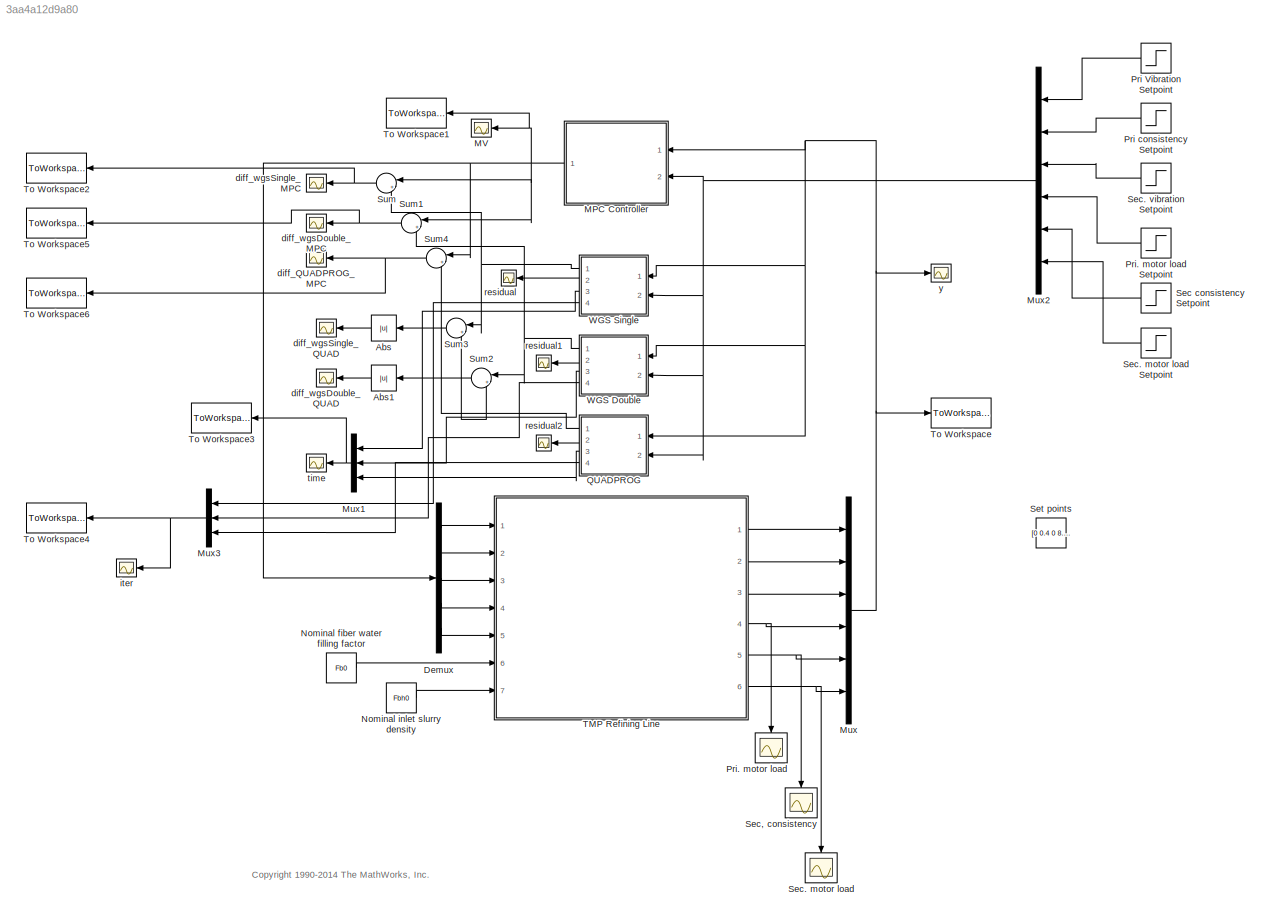
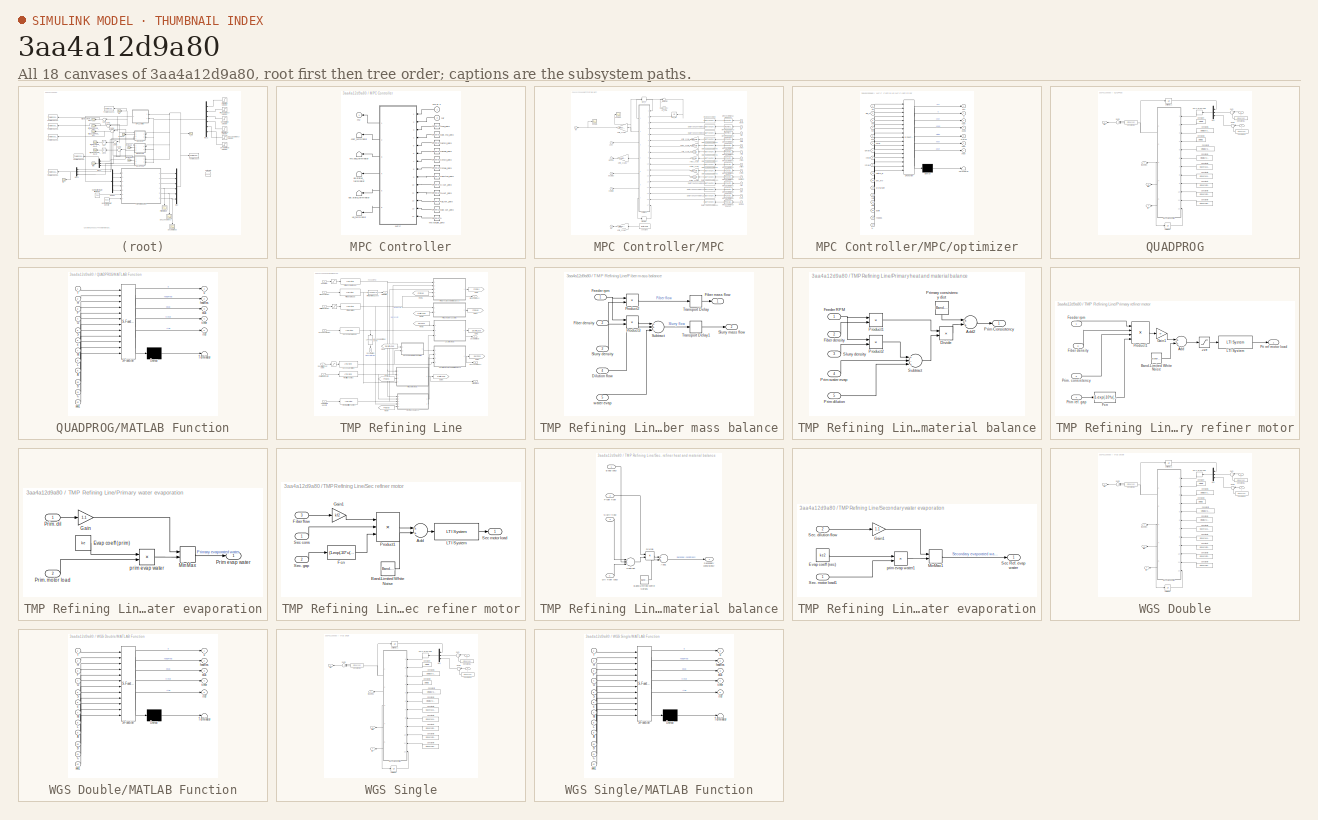
[diagram: thumbnail index - all 18 canvases of the model, root first then tree order]
MODEL slx_3aa4a12d9a80
KIND model
CONFIG AbsTol = auto
CONFIG FixedStep = auto
CONFIG MaxStep = auto
CONFIG MinStep = auto
CONFIG PreLoadFcn = load mpc_tmpdemodata;\nmpctmpinit
CONFIG RelTol = 1e-3
CONFIG SampleTimeConstraint = Unconstrained
CONFIG Solver = ode45
CONFIG SolverMode = SingleTasking
CONFIG SolverName = ode45
CONFIG StartTime = 0.0
CONFIG StopTime = 20.0
BLOCK [Scope]  residual
  DataFormat = Structure
  Floating = off
  LimitDataPoints = off
  NumInputPorts = 1
  Ports = [1]
  SaveName = ScopeData4
  TimeRange = 7
  YMax = 0.15
  YMin = -0.05
BLOCK [Scope]  residual1
  DataFormat = Structure
  Floating = off
  LimitDataPoints = off
  NumInputPorts = 1
  Ports = [1]
  SaveName = ScopeData9
  TimeRange = 7
  YMax = 0.15
  YMin = -0.05
BLOCK [Scope]  residual2
  DataFormat = Structure
  Floating = off
  LimitDataPoints = off
  NumInputPorts = 1
  Ports = [1]
  SaveName = ScopeData10
  TimeRange = 7
  YMax = 0.15
  YMin = -0.05
BLOCK [Abs] Abs
  SaturateOnIntegerOverflow = off
BLOCK [Abs] Abs1
  SaturateOnIntegerOverflow = off
BLOCK [Demux] Demux
  DisplayOption = bar
  Outputs = 5
  Ports = [1, 5]
BLOCK [SubSystem] MPC Controller
  AncestorBlock = mpclib/MPC Controller
  DeleteFcn = impcblock_DeleteFcn
  InitFcn = impcblock_InitFcn
  Ports = [2, 1]
  RequestExecContextInheritance = off
  StartFcn = impcblock_StartFcn
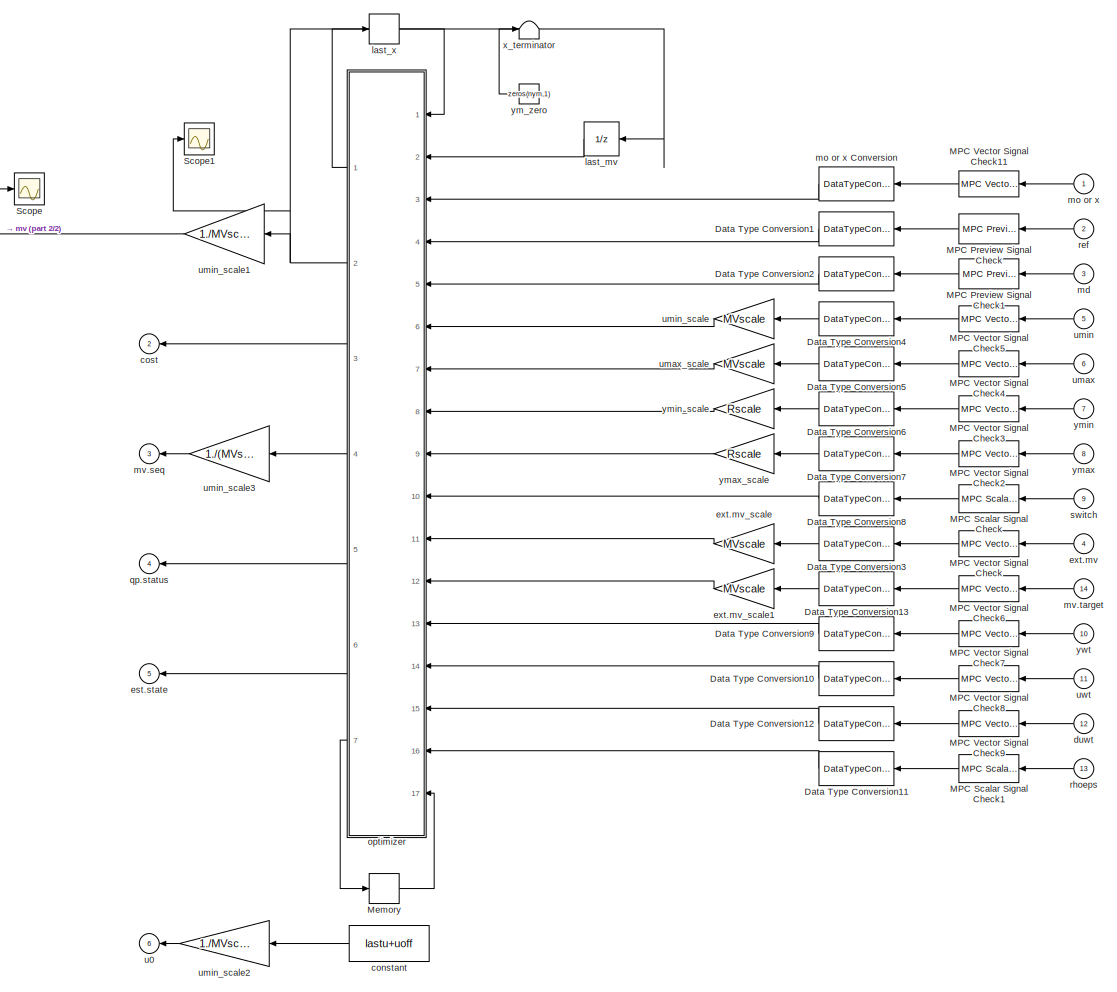
[diagram: MPC Controller/MPC - part 1/2, most of the canvas]
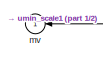
[diagram: MPC Controller/MPC - part 2/2, top left region]
BLOCK [SubSystem] MPC Controller/MPC
  Ports = [14, 6]
  RequestExecContextInheritance = off
BLOCK [DataTypeConversion] MPC Controller/MPC/Data Type Conversion1
  OutDataTypeStr = BlockDataType
  RndMeth = Floor
  SaturateOnIntegerOverflow = off
BLOCK [DataTypeConversion] MPC Controller/MPC/Data Type Conversion10
  OutDataTypeStr = BlockDataType
  RndMeth = Floor
  SaturateOnIntegerOverflow = off
BLOCK [DataTypeConversion] MPC Controller/MPC/Data Type Conversion11
  OutDataTypeStr = BlockDataType
  RndMeth = Floor
  SaturateOnIntegerOverflow = off
BLOCK [DataTypeConversion] MPC Controller/MPC/Data Type Conversion12
  OutDataTypeStr = BlockDataType
  RndMeth = Floor
  SaturateOnIntegerOverflow = off
BLOCK [DataTypeConversion] MPC Controller/MPC/Data Type Conversion13
  OutDataTypeStr = BlockDataType
  RndMeth = Floor
  SaturateOnIntegerOverflow = off
BLOCK [DataTypeConversion] MPC Controller/MPC/Data Type Conversion2
  OutDataTypeStr = BlockDataType
  RndMeth = Floor
  SaturateOnIntegerOverflow = off
BLOCK [DataTypeConversion] MPC Controller/MPC/Data Type Conversion3
  OutDataTypeStr = BlockDataType
  RndMeth = Floor
  SaturateOnIntegerOverflow = off
BLOCK [DataTypeConversion] MPC Controller/MPC/Data Type Conversion4
  OutDataTypeStr = BlockDataType
  RndMeth = Floor
  SaturateOnIntegerOverflow = off
BLOCK [DataTypeConversion] MPC Controller/MPC/Data Type Conversion5
  OutDataTypeStr = BlockDataType
  RndMeth = Floor
  SaturateOnIntegerOverflow = off
BLOCK [DataTypeConversion] MPC Controller/MPC/Data Type Conversion6
  OutDataTypeStr = BlockDataType
  RndMeth = Floor
  SaturateOnIntegerOverflow = off
BLOCK [DataTypeConversion] MPC Controller/MPC/Data Type Conversion7
  OutDataTypeStr = BlockDataType
  RndMeth = Floor
  SaturateOnIntegerOverflow = off
BLOCK [DataTypeConversion] MPC Controller/MPC/Data Type Conversion8
  OutDataTypeStr = BlockDataType
  RndMeth = Floor
  SaturateOnIntegerOverflow = off
BLOCK [DataTypeConversion] MPC Controller/MPC/Data Type Conversion9
  OutDataTypeStr = BlockDataType
  RndMeth = Floor
  SaturateOnIntegerOverflow = off
BLOCK [Reference] MPC Controller/MPC/MPC Preview Signal Check  REF=mpcsigdimcheck_private/MPC Preview Signal Check
  Ports = [1, 1]
  SourceBlock = mpcsigdimcheck_private/MPC Preview Signal Check
  SourceType = MPCSignalDimensionCheck
  blockname = blk
  numcol = ny
  numrow = p
  signalname = 'ref'
BLOCK [Reference] MPC Controller/MPC/MPC Preview Signal Check1  REF=mpcsigdimcheck_private/MPC Preview Signal Check
  Ports = [1, 1]
  SourceBlock = mpcsigdimcheck_private/MPC Preview Signal Check
  SourceType = MPCSignalDimensionCheck
  blockname = blk
  numcol = max(nv-1,1)
  numrow = p+1
  signalname = 'md'
BLOCK [Reference] MPC Controller/MPC/MPC Scalar Signal Check  REF=mpcsigdimcheck_private/MPC Scalar Signal Check
  Ports = [1, 1]
  SourceBlock = mpcsigdimcheck_private/MPC Scalar Signal Check
  SourceType = MPCSignalDimensionCheck
  blockname = blk
  signalname = 'switch'
BLOCK [Reference] MPC Controller/MPC/MPC Scalar Signal Check1  REF=mpcsigdimcheck_private/MPC Scalar Signal Check
  Ports = [1, 1]
  SourceBlock = mpcsigdimcheck_private/MPC Scalar Signal Check
  SourceType = MPCSignalDimensionCheck
  blockname = blk
  signalname = 'ecr.wt'
BLOCK [Reference] MPC Controller/MPC/MPC Vector Signal Check  REF=mpcsigdimcheck_private/MPC Vector Signal Check
  Ports = [1, 1]
  SourceBlock = mpcsigdimcheck_private/MPC Vector Signal Check
  SourceType = MPCSignalDimensionCheck
  blockname = blk
  num = nu
  signalname = 'ext.mv'
  vectortype = Any
BLOCK [Reference] MPC Controller/MPC/MPC Vector Signal Check11  REF=mpcsigdimcheck_private/MPC Vector Signal Check
  Ports = [1, 1]
  SourceBlock = mpcsigdimcheck_private/MPC Vector Signal Check
  SourceType = MPCSignalDimensionCheck
  blockname = blk
  num = nmoorx
  signalname = strmoorx
  vectortype = Any
BLOCK [Reference] MPC Controller/MPC/MPC Vector Signal Check2  REF=mpcsigdimcheck_private/MPC Vector Signal Check
  Ports = [1, 1]
  SourceBlock = mpcsigdimcheck_private/MPC Vector Signal Check
  SourceType = MPCSignalDimensionCheck
  blockname = blk
  num = ny
  signalname = 'ymax'
  vectortype = Any
BLOCK [Reference] MPC Controller/MPC/MPC Vector Signal Check3  REF=mpcsigdimcheck_private/MPC Vector Signal Check
  Ports = [1, 1]
  SourceBlock = mpcsigdimcheck_private/MPC Vector Signal Check
  SourceType = MPCSignalDimensionCheck
  blockname = blk
  num = ny
  signalname = 'ymin'
  vectortype = Any
BLOCK [Reference] MPC Controller/MPC/MPC Vector Signal Check4  REF=mpcsigdimcheck_private/MPC Vector Signal Check
  Ports = [1, 1]
  SourceBlock = mpcsigdimcheck_private/MPC Vector Signal Check
  SourceType = MPCSignalDimensionCheck
  blockname = blk
  num = nu
  signalname = 'umax'
  vectortype = Any
BLOCK [Reference] MPC Controller/MPC/MPC Vector Signal Check5  REF=mpcsigdimcheck_private/MPC Vector Signal Check
  Ports = [1, 1]
  SourceBlock = mpcsigdimcheck_private/MPC Vector Signal Check
  SourceType = MPCSignalDimensionCheck
  blockname = blk
  num = nu
  signalname = 'umin'
  vectortype = Any
BLOCK [Reference] MPC Controller/MPC/MPC Vector Signal Check6  REF=mpcsigdimcheck_private/MPC Vector Signal Check
  Ports = [1, 1]
  SourceBlock = mpcsigdimcheck_private/MPC Vector Signal Check
  SourceType = MPCSignalDimensionCheck
  blockname = blk
  num = nu
  signalname = 'mv.target'
  vectortype = Any
BLOCK [Reference] MPC Controller/MPC/MPC Vector Signal Check7  REF=mpcsigdimcheck_private/MPC Vector Signal Check
  Ports = [1, 1]
  SourceBlock = mpcsigdimcheck_private/MPC Vector Signal Check
  SourceType = MPCSignalDimensionCheck
  blockname = blk
  num = ny
  signalname = 'y.wt'
  vectortype = Any
BLOCK [Reference] MPC Controller/MPC/MPC Vector Signal Check8  REF=mpcsigdimcheck_private/MPC Vector Signal Check
  Ports = [1, 1]
  SourceBlock = mpcsigdimcheck_private/MPC Vector Signal Check
  SourceType = MPCSignalDimensionCheck
  blockname = blk
  num = nu
  signalname = 'u.wt'
  vectortype = Any
BLOCK [Reference] MPC Controller/MPC/MPC Vector Signal Check9  REF=mpcsigdimcheck_private/MPC Vector Signal Check
  Ports = [1, 1]
  SourceBlock = mpcsigdimcheck_private/MPC Vector Signal Check
  SourceType = MPCSignalDimensionCheck
  blockname = blk
  num = nu
  signalname = 'du.wt'
  vectortype = Any
BLOCK [Memory] MPC Controller/MPC/Memory
  InheritSampleTime = on
  LinearizeAsDelay = on
  X0 = iA
BLOCK [Scope] MPC Controller/MPC/Scope
  Floating = off
  NumInputPorts = 1
  Ports = [1]
  SaveName = ScopeData7
BLOCK [Scope] MPC Controller/MPC/Scope1
  Floating = off
  NumInputPorts = 1
  Ports = [1]
  SaveName = ScopeData8
BLOCK [Constant] MPC Controller/MPC/constant
  Value = lastu+uoff
BLOCK [Outport] MPC Controller/MPC/cost
  IconDisplay = Port number
  OutDataTypeStr = BlockDataType
  Port = 2
BLOCK [Inport] MPC Controller/MPC/duwt
  IconDisplay = Port number
  Port = 12
BLOCK [Outport] MPC Controller/MPC/est.state
  IconDisplay = Port number
  OutDataTypeStr = BlockDataType
  Port = 5
BLOCK [Inport] MPC Controller/MPC/ext.mv
  IconDisplay = Port number
  Port = 4
BLOCK [Gain] MPC Controller/MPC/ext.mv_scale
  Gain = MVscale
  OutDataTypeStr = Inherit: Inherit via internal rule
  ParamDataTypeStr = Inherit: Inherit via internal rule
  SampleTime = ts
  SaturateOnIntegerOverflow = off
BLOCK [Gain] MPC Controller/MPC/ext.mv_scale1
  Gain = MVscale
  OutDataTypeStr = Inherit: Inherit via internal rule
  ParamDataTypeStr = Inherit: Inherit via internal rule
  SampleTime = ts
  SaturateOnIntegerOverflow = off
BLOCK [UnitDelay] MPC Controller/MPC/last_mv
  InitialCondition = lastu+uoff
  InputProcessing = Elements as channels (sample based)
  SampleTime = ts
BLOCK [Memory] MPC Controller/MPC/last_x
  InheritSampleTime = on
  LinearizeAsDelay = on
  X0 = lastx+xoff
BLOCK [Inport] MPC Controller/MPC/md
  IconDisplay = Port number
  Port = 3
BLOCK [Inport] MPC Controller/MPC/mo or x
  IconDisplay = Port number
BLOCK [DataTypeConversion] MPC Controller/MPC/mo or x Conversion
  OutDataTypeStr = BlockDataType
  RndMeth = Floor
  SaturateOnIntegerOverflow = off
BLOCK [Outport] MPC Controller/MPC/mv
  IconDisplay = Port number
  OutDataTypeStr = BlockDataType
BLOCK [Outport] MPC Controller/MPC/mv.seq
  IconDisplay = Port number
  OutDataTypeStr = BlockDataType
  Port = 3
BLOCK [Inport] MPC Controller/MPC/mv.target
  IconDisplay = Port number
  Port = 14
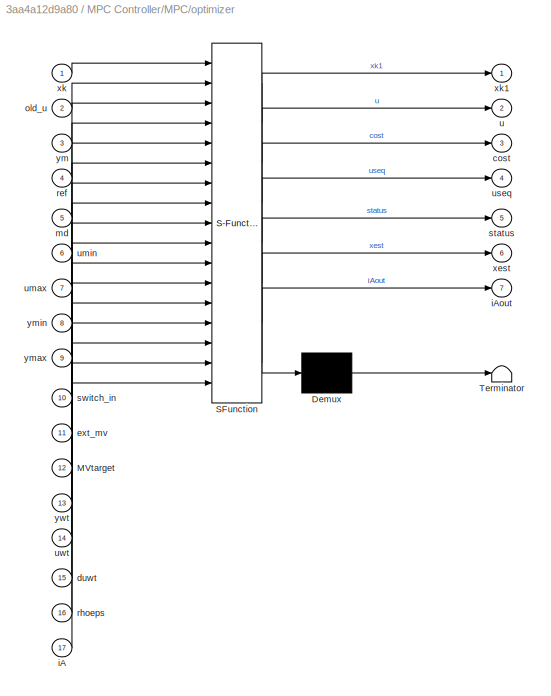
BLOCK [SubSystem] MPC Controller/MPC/optimizer
  ErrorFcn = Stateflow.Translate.translate
  PermitHierarchicalResolution = ExplicitOnly
  Ports = [17, 7]
  RequestExecContextInheritance = off
  SFBlockType = MATLAB Function
BLOCK [Demux] MPC Controller/MPC/optimizer/ Demux 
  Outputs = 1
  Ports = [1, 1]
BLOCK [S-Function] MPC Controller/MPC/optimizer/ SFunction 
  EnableBusSupport = on
  FunctionName = sf_sfun
  Parameters = A,Ac,Bu,Bv,C,CustomEstimation,Dv,Ecc,Fcc,Gcc,H,Hinv,Hv,I1,Jm,Kr,Ku1,Kut,Kv,Kx,L,Linv,M,MDscale,Mlim,Mrows,Mu1,Mv,Mx,Rscale,Scc,Su1,SuJm,Sx,Wdu,Wu,Wy,degrees,enable_value,isQP,lims_inport,maxiter,myindex,myoff,nCC,no_duwt,no_md,no_mv,no_ref,no_rhoeps,no_switch,no_umax,no_umin,no_uref,no_uwt,no_ymax,no_ymin,no_ywt,nu,nv,nx,nxQP,ny,openloopflag,p,return_cost,return_sequence,switch_inport,uoff,utarget...<+25ch>
  PortCounts = [17 8]
  Ports = [17, 8]
  Tag = Stateflow S-Function mpc_tmpdemo2 3
BLOCK [Terminator] MPC Controller/MPC/optimizer/ Terminator 
BLOCK [Inport] MPC Controller/MPC/optimizer/MVtarget
  IconDisplay = Port number
  Port = 12
BLOCK [Outport] MPC Controller/MPC/optimizer/cost
  IconDisplay = Port number
  Port = 3
BLOCK [Inport] MPC Controller/MPC/optimizer/duwt
  IconDisplay = Port number
  Port = 15
BLOCK [Inport] MPC Controller/MPC/optimizer/ext_mv
  IconDisplay = Port number
  Port = 11
BLOCK [Inport] MPC Controller/MPC/optimizer/iA
  IconDisplay = Port number
  Port = 17
BLOCK [Outport] MPC Controller/MPC/optimizer/iAout
  IconDisplay = Port number
  Port = 7
BLOCK [Inport] MPC Controller/MPC/optimizer/md
  IconDisplay = Port number
  Port = 5
BLOCK [Inport] MPC Controller/MPC/optimizer/old_u
  IconDisplay = Port number
  Port = 2
BLOCK [Inport] MPC Controller/MPC/optimizer/ref
  IconDisplay = Port number
  Port = 4
BLOCK [Inport] MPC Controller/MPC/optimizer/rhoeps
  IconDisplay = Port number
  Port = 16
BLOCK [Outport] MPC Controller/MPC/optimizer/status
  IconDisplay = Port number
  Port = 5
BLOCK [Inport] MPC Controller/MPC/optimizer/switch_in
  IconDisplay = Port number
  Port = 10
BLOCK [Outport] MPC Controller/MPC/optimizer/u
  IconDisplay = Port number
  Port = 2
BLOCK [Inport] MPC Controller/MPC/optimizer/umax
  IconDisplay = Port number
  Port = 7
BLOCK [Inport] MPC Controller/MPC/optimizer/umin
  IconDisplay = Port number
  Port = 6
BLOCK [Outport] MPC Controller/MPC/optimizer/useq
  IconDisplay = Port number
  Port = 4
BLOCK [Inport] MPC Controller/MPC/optimizer/uwt
  IconDisplay = Port number
  Port = 14
BLOCK [Outport] MPC Controller/MPC/optimizer/xest
  IconDisplay = Port number
  Port = 6
BLOCK [Inport] MPC Controller/MPC/optimizer/xk
  IconDisplay = Port number
BLOCK [Outport] MPC Controller/MPC/optimizer/xk1
  IconDisplay = Port number
BLOCK [Inport] MPC Controller/MPC/optimizer/ym
  IconDisplay = Port number
  Port = 3
BLOCK [Inport] MPC Controller/MPC/optimizer/ymax
  IconDisplay = Port number
  Port = 9
BLOCK [Inport] MPC Controller/MPC/optimizer/ymin
  IconDisplay = Port number
  Port = 8
BLOCK [Inport] MPC Controller/MPC/optimizer/ywt
  IconDisplay = Port number
  Port = 13
BLOCK [Outport] MPC Controller/MPC/qp.status
  IconDisplay = Port number
  OutDataTypeStr = BlockDataType
  Port = 4
BLOCK [Inport] MPC Controller/MPC/ref
  IconDisplay = Port number
  Port = 2
BLOCK [Inport] MPC Controller/MPC/rhoeps
  IconDisplay = Port number
  Port = 13
BLOCK [Inport] MPC Controller/MPC/switch
  IconDisplay = Port number
  Port = 9
BLOCK [Outport] MPC Controller/MPC/u0
  IconDisplay = Port number
  OutDataTypeStr = BlockDataType
  Port = 6
BLOCK [Inport] MPC Controller/MPC/umax
  IconDisplay = Port number
  Port = 6
BLOCK [Gain] MPC Controller/MPC/umax_scale
  Gain = MVscale
  OutDataTypeStr = Inherit: Inherit via internal rule
  ParamDataTypeStr = Inherit: Inherit via internal rule
  SampleTime = ts
  SaturateOnIntegerOverflow = off
BLOCK [Inport] MPC Controller/MPC/umin
  IconDisplay = Port number
  Port = 5
BLOCK [Gain] MPC Controller/MPC/umin_scale
  Gain = MVscale
  OutDataTypeStr = Inherit: Inherit via internal rule
  ParamDataTypeStr = Inherit: Inherit via internal rule
  SampleTime = ts
  SaturateOnIntegerOverflow = off
BLOCK [Gain] MPC Controller/MPC/umin_scale1
  Gain = 1./MVscale
  OutDataTypeStr = Inherit: Inherit via internal rule
  ParamDataTypeStr = Inherit: Inherit via internal rule
  SampleTime = ts
  SaturateOnIntegerOverflow = off
BLOCK [Gain] MPC Controller/MPC/umin_scale2
  Gain = 1./MVscale
  OutDataTypeStr = Inherit: Inherit via internal rule
  ParamDataTypeStr = Inherit: Inherit via internal rule
  SampleTime = ts
  SaturateOnIntegerOverflow = off
BLOCK [Gain] MPC Controller/MPC/umin_scale3
  Gain = 1./(MVscale(:,ones(1,p)))'
  OutDataTypeStr = Inherit: Inherit via internal rule
  ParamDataTypeStr = Inherit: Inherit via internal rule
  SampleTime = ts
  SaturateOnIntegerOverflow = off
BLOCK [Inport] MPC Controller/MPC/uwt
  IconDisplay = Port number
  Port = 11
BLOCK [Terminator] MPC Controller/MPC/x_terminator
BLOCK [Constant] MPC Controller/MPC/ym_zero
  OutDataTypeStr = BlockDataType
  Value = zeros(nym,1)
BLOCK [Inport] MPC Controller/MPC/ymax
  IconDisplay = Port number
  Port = 8
BLOCK [Gain] MPC Controller/MPC/ymax_scale
  Gain = Rscale
  OutDataTypeStr = Inherit: Inherit via internal rule
  ParamDataTypeStr = Inherit: Inherit via internal rule
  SampleTime = ts
  SaturateOnIntegerOverflow = off
BLOCK [Inport] MPC Controller/MPC/ymin
  IconDisplay = Port number
  Port = 7
BLOCK [Gain] MPC Controller/MPC/ymin_scale
  Gain = Rscale
  OutDataTypeStr = Inherit: Inherit via internal rule
  ParamDataTypeStr = Inherit: Inherit via internal rule
  SampleTime = ts
  SaturateOnIntegerOverflow = off
BLOCK [Inport] MPC Controller/MPC/ywt
  IconDisplay = Port number
  Port = 10
BLOCK [Terminator] MPC Controller/cost_terminator
BLOCK [Constant] MPC Controller/du.wt_zero
  OutDataTypeStr = BlockDataType
  Value = zeros(5,1)
BLOCK [Constant] MPC Controller/ecr.wt_zero
  OutDataTypeStr = BlockDataType
  Value = zeros(1,1)
BLOCK [Terminator] MPC Controller/est.state_terminator
BLOCK [Constant] MPC Controller/ext.mv_zero
  OutDataTypeStr = BlockDataType
  Value = zeros(5,1)
BLOCK [Constant] MPC Controller/md_zero
  OutDataTypeStr = BlockDataType
  Value = zeros(1,1)
BLOCK [Inport] MPC Controller/mo or x
  IconDisplay = Port number
BLOCK [Outport] MPC Controller/mv
  IconDisplay = Port number
BLOCK [Terminator] MPC Controller/mv.seq_terminator
BLOCK [Constant] MPC Controller/mv.target_zero
  OutDataTypeStr = BlockDataType
  Value = zeros(5,1)
BLOCK [Terminator] MPC Controller/qp.status_terminator
BLOCK [Inport] MPC Controller/ref
  IconDisplay = Port number
  Port = 2
BLOCK [Constant] MPC Controller/switch_zero
  OutDataTypeStr = BlockDataType
  Value = zeros(1,1)
BLOCK [Constant] MPC Controller/u.wt_zero
  OutDataTypeStr = BlockDataType
  Value = zeros(5,1)
BLOCK [Terminator] MPC Controller/u0_terminator
BLOCK [Constant] MPC Controller/umax_zero
  OutDataTypeStr = BlockDataType
  Value = zeros(5,1)
BLOCK [Constant] MPC Controller/umin_zero
  OutDataTypeStr = BlockDataType
  Value = zeros(5,1)
BLOCK [Constant] MPC Controller/y.wt_zero
  OutDataTypeStr = BlockDataType
  Value = zeros(6,1)
BLOCK [Constant] MPC Controller/ymax_zero
  OutDataTypeStr = BlockDataType
  Value = zeros(6,1)
BLOCK [Constant] MPC Controller/ymin_zero
  OutDataTypeStr = BlockDataType
  Value = zeros(6,1)
BLOCK [Scope] MV
  Floating = off
  NumInputPorts = 1
  Ports = [1]
  SaveName = ScopeData6
  ZoomMode = xonly
BLOCK [Mux] Mux
  DisplayOption = bar
  Inputs = 6
  Ports = [6, 1]
BLOCK [Mux] Mux1
  DisplayOption = bar
  Inputs = 3
  Ports = [3, 1]
BLOCK [Mux] Mux2
  DisplayOption = bar
  Inputs = 6
  Ports = [6, 1]
BLOCK [Mux] Mux3
  DisplayOption = bar
  Inputs = 3
  Ports = [3, 1]
BLOCK [Constant] Nominal fiber water filling factor
  Value = Fb0
BLOCK [Constant] Nominal inlet slurry density
  Value = Fbh0
BLOCK [Step] Pri Vibration Setpoint
  After = 0
  SampleTime = 0
  Time = 0
BLOCK [Step] Pri consistency Setpoint
  After = 0.5
  Before = 0.5
  SampleTime = 0
BLOCK [Scope] Pri. motor load
  DataFormat = StructureWithTime
  Floating = off
  NumInputPorts = 1
  Ports = [1]
  SampleTime = 0
  YMax = 0.415
  YMin = 0.3825
  ZoomMode = yonly
BLOCK [Step] Pri. motor load Setpoint
  After = 8.5
  Before = 8.5
  SampleTime = 0
  Time = 0
BLOCK [SubSystem] QUADPROG
  Ports = [2, 4]
  RequestExecContextInheritance = off
BLOCK [Constant] QUADPROG/Constant
  Value = st.mat.H
BLOCK [Constant] QUADPROG/Constant1
  Value = st.mat.parametric.F
BLOCK [Constant] QUADPROG/Constant10
  Value = st.specs.offset.u
BLOCK [Constant] QUADPROG/Constant11
  Value = st.specs.offset.y
BLOCK [Constant] QUADPROG/Constant12
  Value = st.specs.offset.y
BLOCK [Constant] QUADPROG/Constant2
  Value = st.mat.G
BLOCK [Constant] QUADPROG/Constant3
  Value = st.mat.parametric.S
BLOCK [Constant] QUADPROG/Constant4
  Value = st.mat.parametric.s
BLOCK [Constant] QUADPROG/Constant5
  Value = st.specs.kalman.M
BLOCK [Constant] QUADPROG/Constant6
  Value = st.specs.kalman.L
BLOCK [Constant] QUADPROG/Constant7
  Value = st.specs.model.A
BLOCK [Constant] QUADPROG/Constant8
  Value = st.specs.model.B
BLOCK [Constant] QUADPROG/Constant9
  Value = st.specs.model.C
BLOCK [SubSystem] QUADPROG/MATLAB Function
  ErrorFcn = Stateflow.Translate.translate
  PermitHierarchicalResolution = ExplicitOnly
  Ports = [12, 5]
  RequestExecContextInheritance = off
  SFBlockType = MATLAB Function
  TreatAsAtomicUnit = on
BLOCK [Demux] QUADPROG/MATLAB Function/ Demux 
  Outputs = 1
  Ports = [1, 1]
BLOCK [S-Function] QUADPROG/MATLAB Function/ SFunction 
  EnableBusSupport = on
  FunctionName = sf_sfun
  PortCounts = [12 6]
  Ports = [12, 6]
  Tag = Stateflow S-Function mpc_tmpdemo2 4
BLOCK [Terminator] QUADPROG/MATLAB Function/ Terminator 
BLOCK [Inport] QUADPROG/MATLAB Function/A
  IconDisplay = Port number
  Port = 9
BLOCK [Inport] QUADPROG/MATLAB Function/B
  IconDisplay = Port number
  Port = 10
BLOCK [Inport] QUADPROG/MATLAB Function/C
  IconDisplay = Port number
  Port = 11
BLOCK [Inport] QUADPROG/MATLAB Function/F
  IconDisplay = Port number
  Port = 3
BLOCK [Inport] QUADPROG/MATLAB Function/G
  IconDisplay = Port number
  Port = 4
BLOCK [Inport] QUADPROG/MATLAB Function/H
  IconDisplay = Port number
  Port = 2
BLOCK [Inport] QUADPROG/MATLAB Function/L
  IconDisplay = Port number
  Port = 8
BLOCK [Inport] QUADPROG/MATLAB Function/M
  IconDisplay = Port number
  Port = 7
BLOCK [Inport] QUADPROG/MATLAB Function/S
  IconDisplay = Port number
  Port = 5
BLOCK [Inport] QUADPROG/MATLAB Function/f
  IconDisplay = Port number
BLOCK [Outport] QUADPROG/MATLAB Function/feasRes
  IconDisplay = Port number
  Port = 2
BLOCK [Outport] QUADPROG/MATLAB Function/iter
  IconDisplay = Port number
  Port = 5
BLOCK [Inport] QUADPROG/MATLAB Function/s
  IconDisplay = Port number
  Port = 6
BLOCK [Outport] QUADPROG/MATLAB Function/time
  IconDisplay = Port number
  Port = 4
BLOCK [Outport] QUADPROG/MATLAB Function/u
  IconDisplay = Port number
BLOCK [Outport] QUADPROG/MATLAB Function/xk1k
  IconDisplay = Port number
  Port = 3
BLOCK [Inport] QUADPROG/MATLAB Function/xkk1
  IconDisplay = Port number
  Port = 12
BLOCK [Outport] QUADPROG/MV
  IconDisplay = Port number
BLOCK [Mux] QUADPROG/Mux
  DisplayOption = bar
  Inputs = 3
  Ports = [3, 1]
BLOCK [Sum] QUADPROG/Sum
  IconShape = round
  InputSameDT = off
  Inputs = |+-
  OutDataTypeStr = Inherit: Inherit via internal rule
  Ports = [2, 1]
  SaturateOnIntegerOverflow = off
BLOCK [Sum] QUADPROG/Sum1
  IconShape = round
  InputSameDT = off
  Inputs = |+-
  OutDataTypeStr = Inherit: Inherit via internal rule
  Ports = [2, 1]
  SaturateOnIntegerOverflow = off
BLOCK [Sum] QUADPROG/Sum2
  IconShape = round
  InputSameDT = off
  Inputs = |++
  OutDataTypeStr = Inherit: Inherit via internal rule
  Ports = [2, 1]
  SaturateOnIntegerOverflow = off
BLOCK [UnitDelay] QUADPROG/Unit Delay
  InitialCondition = st.specs.init.x0
  InputProcessing = Elements as channels (sample based)
  SampleTime = st.specs.model.Ts
BLOCK [UnitDelay] QUADPROG/Unit Delay1
  InitialCondition = st.specs.init.u0
  InputProcessing = Elements as channels (sample based)
  SampleTime = st.specs.model.Ts
BLOCK [ZeroOrderHold] QUADPROG/Zero-Order Hold
  SampleTime = st.specs.model.Ts
BLOCK [Outport] QUADPROG/feasRes
  IconDisplay = Port number
  Port = 2
BLOCK [Outport] QUADPROG/iter
  IconDisplay = Port number
  Port = 4
BLOCK [Inport] QUADPROG/r
  IconDisplay = Port number
  Port = 2
BLOCK [Outport] QUADPROG/time
  IconDisplay = Port number
  Port = 3
BLOCK [Inport] QUADPROG/y
  IconDisplay = Port number
BLOCK [Step] Sec consistency Setpoint
  After = 0.4
  Before = 0.4
  SampleTime = 0
  Time = 0
BLOCK [Scope] Sec, consistency
  DataFormat = StructureWithTime
  Floating = off
  NumInputPorts = 1
  Ports = [1]
  SampleTime = 0
  SaveName = ScopeData1
  YMax = 0.415
  YMin = 0.3825
  ZoomMode = yonly
BLOCK [Scope] Sec. motor load
  DataFormat = StructureWithTime
  Floating = off
  NumInputPorts = 1
  Ports = [1]
  SampleTime = 0
  SaveName = ScopeData2
  YMax = 0.415
  YMin = 0.3825
  ZoomMode = yonly
BLOCK [Step] Sec. motor load Setpoint
  After = 7
  Before = 7
  SampleTime = 0
  Time = 0
BLOCK [Step] Sec. vibration Setpoint
  After = 0
  SampleTime = 0
  Time = 0
BLOCK [Constant] Set points
  Value = [0 0.4 0 8.5 0.3 6]
BLOCK [Sum] Sum
  IconShape = round
  InputSameDT = off
  Inputs = |+-
  OutDataTypeStr = Inherit: Inherit via internal rule
  Ports = [2, 1]
  SaturateOnIntegerOverflow = off
BLOCK [Sum] Sum1
  IconShape = round
  InputSameDT = off
  Inputs = |+-
  OutDataTypeStr = Inherit: Inherit via internal rule
  Ports = [2, 1]
  SaturateOnIntegerOverflow = off
BLOCK [Sum] Sum2
  IconShape = round
  InputSameDT = off
  Inputs = |+-
  OutDataTypeStr = Inherit: Inherit via internal rule
  Ports = [2, 1]
  SaturateOnIntegerOverflow = off
BLOCK [Sum] Sum3
  IconShape = round
  InputSameDT = off
  Inputs = |+-
  OutDataTypeStr = Inherit: Inherit via internal rule
  Ports = [2, 1]
  SaturateOnIntegerOverflow = off
BLOCK [Sum] Sum4
  IconShape = round
  InputSameDT = off
  Inputs = |+-
  OutDataTypeStr = Inherit: Inherit via internal rule
  Ports = [2, 1]
  SaturateOnIntegerOverflow = off
BLOCK [SubSystem] TMP Refining Line
  Ports = [7, 6]
  RequestExecContextInheritance = off
BLOCK [Saturate] TMP Refining Line/  
  InputPortMap = u0
  LowerLimit = 25
  Ports = [1, 1]
  SampleTime = 0.5
  UpperLimit = 35
BLOCK [Saturate] TMP Refining Line/    
  InputPortMap = u0
  LowerLimit = 90
  Ports = [1, 1]
  SampleTime = 0.5
  UpperLimit = 200
BLOCK [Saturate] TMP Refining Line/       
  InputPortMap = u0
  LowerLimit = 90
  Ports = [1, 1]
  SampleTime = 0.5
  UpperLimit = 200
BLOCK [Inport] TMP Refining Line/Chip fiber density
  IconDisplay = Port number
  Port = 6
BLOCK [Inport] TMP Refining Line/Chip mixture density
  IconDisplay = Port number
  Port = 7
BLOCK [Inport] TMP Refining Line/Feed rpm
  IconDisplay = Port number
BLOCK [Reference] TMP Refining Line/Fiber fill dynamics  REF=cstblocks/LTI System
  IC = Fb0
  Ports = [1, 1]
  SourceBlock = cstblocks/LTI System
  SourceType = LTI Block
  sys = FiberFill
BLOCK [SubSystem] TMP Refining Line/Fiber mass balance
  Ports = [5, 2]
  RequestExecContextInheritance = off
BLOCK [Inport] TMP Refining Line/Fiber mass balance/Dilution flow
  IconDisplay = Port number
  Port = 4
BLOCK [Inport] TMP Refining Line/Fiber mass balance/Feeder rpm
  IconDisplay = Port number
BLOCK [Inport] TMP Refining Line/Fiber mass balance/Fiber density
  IconDisplay = Port number
  Port = 2
BLOCK [Outport] TMP Refining Line/Fiber mass balance/Fiber mass flow
  IconDisplay = Port number
BLOCK [Product] TMP Refining Line/Fiber mass balance/Product2
  InputSameDT = off
  OutDataTypeStr = Inherit: Inherit via internal rule
  Ports = [2, 1]
  SaturateOnIntegerOverflow = off
BLOCK [Product] TMP Refining Line/Fiber mass balance/Product3
  InputSameDT = off
  OutDataTypeStr = Inherit: Inherit via internal rule
  Ports = [2, 1]
  SaturateOnIntegerOverflow = off
BLOCK [Inport] TMP Refining Line/Fiber mass balance/Slurry density
  IconDisplay = Port number
  Port = 3
BLOCK [Outport] TMP Refining Line/Fiber mass balance/Slurry mass flow
  IconDisplay = Port number
  Port = 2
BLOCK [Sum] TMP Refining Line/Fiber mass balance/Subtract
  InputSameDT = off
  Inputs = ++-
  OutDataTypeStr = Inherit: Inherit via internal rule
  Ports = [3, 1]
  SaturateOnIntegerOverflow = off
BLOCK [TransportDelay] TMP Refining Line/Fiber mass balance/Transport Delay
  DelayTime = 2
  InitialOutput = m2
  Ports = [1, 1]
BLOCK [TransportDelay] TMP Refining Line/Fiber mass balance/Transport Delay1
  DelayTime = 2
  InitialOutput = M2
  Ports = [1, 1]
BLOCK [Inport] TMP Refining Line/Fiber mass balance/water evap
  IconDisplay = Port number
  Port = 5
BLOCK [Reference] TMP Refining Line/Fiber water fill dynamics  REF=cstblocks/LTI System
  IC = Fbh0
  Ports = [1, 1]
  SourceBlock = cstblocks/LTI System
  SourceType = LTI Block
  sys = FiberWaterFill
BLOCK [From] TMP Refining Line/From1
  CloseFcn = tagdialog Close
  GotoTag = SecMtrLoad
BLOCK [From] TMP Refining Line/From2
  CloseFcn = tagdialog Close
  GotoTag = PriCons
BLOCK [From] TMP Refining Line/From3
  CloseFcn = tagdialog Close
  GotoTag = SecCons
BLOCK [From] TMP Refining Line/From4
  CloseFcn = tagdialog Close
  GotoTag = PriEvap
BLOCK [From] TMP Refining Line/From5
  CloseFcn = tagdialog Close
  GotoTag = PriEvap
BLOCK [From] TMP Refining Line/From6
  CloseFcn = tagdialog Close
  GotoTag = PriMtrLoad
BLOCK [Goto] TMP Refining Line/Goto1
  GotoTag = SecMtrLoad
BLOCK [Goto] TMP Refining Line/Goto2
  GotoTag = PriCons
BLOCK [Goto] TMP Refining Line/Goto3
  GotoTag = SecCons
BLOCK [Goto] TMP Refining Line/Goto4
  GotoTag = PriEvap
BLOCK [Goto] TMP Refining Line/Goto5
  GotoTag = PriMtrLoad
BLOCK [Outport] TMP Refining Line/Pri Vibration
  IconDisplay = Port number
BLOCK [Inport] TMP Refining Line/Pri dil flow set point
  IconDisplay = Port number
  Port = 3
BLOCK [Inport] TMP Refining Line/Pri gap set point
  IconDisplay = Port number
  Port = 2
BLOCK [Outport] TMP Refining Line/Pri. consistency
  IconDisplay = Port number
  Port = 2
BLOCK [Outport] TMP Refining Line/Pri. motor load
  IconDisplay = Port number
  Port = 4
BLOCK [Reference] TMP Refining Line/Primary dilution  REF=cstblocks/LTI System
  IC = dp0
  Ports = [1, 1]
  SourceBlock = cstblocks/LTI System
  SourceType = LTI Block
  sys = DilFlowPrimary
BLOCK [SubSystem] TMP Refining Line/Primary heat and material balance
  Ports = [5, 1]
  RequestExecContextInheritance = off
BLOCK [Sum] TMP Refining Line/Primary heat and material balance/Add2
  InputSameDT = off
  OutDataTypeStr = Inherit: Inherit via internal rule
  Ports = [2, 1]
  SaturateOnIntegerOverflow = off
BLOCK [Product] TMP Refining Line/Primary heat and material balance/Divide
  InputSameDT = off
  Inputs = */
  OutDataTypeStr = Inherit: Inherit via internal rule
  Ports = [2, 1]
  RndMeth = Floor
  SampleTime = .5
  SaturateOnIntegerOverflow = off
BLOCK [Inport] TMP Refining Line/Primary heat and material balance/Feeder RPM
  IconDisplay = Port number
BLOCK [Inport] TMP Refining Line/Primary heat and material balance/Fiber density
  IconDisplay = Port number
  Port = 2
BLOCK [Outport] TMP Refining Line/Primary heat and material balance/Prim Consistency
  IconDisplay = Port number
BLOCK [Inport] TMP Refining Line/Primary heat and material balance/Prim dilution
  IconDisplay = Port number
  Port = 5
BLOCK [Inport] TMP Refining Line/Primary heat and material balance/Prim water evap
  IconDisplay = Port number
  Port = 4
BLOCK [Reference] TMP Refining Line/Primary heat and material balance/Primary consistency dist  REF=simulink/Sources/Band-Limited
White Noise
  Cov = 0.00001
  Ports = [0, 1]
  SourceBlock = simulink/Sources/Band-Limited\nWhite Noise
  SourceType = Band-Limited White Noise.
  Ts = 0.5
  VectorParams1D = on
  seed = [23341]
BLOCK [Product] TMP Refining Line/Primary heat and material balance/Product1
  InputSameDT = off
  OutDataTypeStr = Inherit: Inherit via internal rule
  Ports = [2, 1]
  SaturateOnIntegerOverflow = off
BLOCK [Product] TMP Refining Line/Primary heat and material balance/Product2
  InputSameDT = off
  OutDataTypeStr = Inherit: Inherit via internal rule
  Ports = [2, 1]
  SaturateOnIntegerOverflow = off
BLOCK [Inport] TMP Refining Line/Primary heat and material balance/Slurry density
  IconDisplay = Port number
  Port = 3
BLOCK [Sum] TMP Refining Line/Primary heat and material balance/Subtract
  InputSameDT = off
  Inputs = +-+
  OutDataTypeStr = Inherit: Inherit via internal rule
  Ports = [3, 1]
  SaturateOnIntegerOverflow = off
BLOCK [Reference] TMP Refining Line/Primary plate gap  REF=cstblocks/LTI System
  IC = gp0
  Ports = [1, 1]
  SourceBlock = cstblocks/LTI System
  SourceType = LTI Block
  sys = PlateGapPrimary
BLOCK [SubSystem] TMP Refining Line/Primary refiner motor
  Ports = [4, 1]
  RequestExecContextInheritance = off
BLOCK [Saturate] TMP Refining Line/Primary refiner motor/+ve
  InputPortMap = u0
  LowerLimit = 0
  Ports = [1, 1]
  SampleTime = 0.5
  UpperLimit = inf
BLOCK [Sum] TMP Refining Line/Primary refiner motor/Add
  InputSameDT = off
  OutDataTypeStr = Inherit: Inherit via internal rule
  Ports = [2, 1]
  SaturateOnIntegerOverflow = off
BLOCK [Reference] TMP Refining Line/Primary refiner motor/Band-Limited White Noise  REF=simulink/Sources/Band-Limited
White Noise
  Cov = 0.0001
  Ports = [0, 1]
  SourceBlock = simulink/Sources/Band-Limited\nWhite Noise
  SourceType = Band-Limited White Noise.
  Ts = 0.5
  VectorParams1D = on
  seed = [23341]
BLOCK [Fcn] TMP Refining Line/Primary refiner motor/Fcn
  Expr = (1-exp(-10*u(1)))*(1.2-0.3*u(1))
BLOCK [Inport] TMP Refining Line/Primary refiner motor/Feeder rpm
  IconDisplay = Port number
BLOCK [Inport] TMP Refining Line/Primary refiner motor/Fiber density
  IconDisplay = Port number
  Port = 2
BLOCK [Gain] TMP Refining Line/Primary refiner motor/Gain1
  Gain = kf
  OutDataTypeStr = Inherit: Inherit via internal rule
  ParamDataTypeStr = Inherit: Inherit via internal rule
  SaturateOnIntegerOverflow = off
BLOCK [Reference] TMP Refining Line/Primary refiner motor/LTI System  REF=cstblocks/LTI System
  IC = mlp0
  Ports = [1, 1]
  SourceBlock = cstblocks/LTI System
  SourceType = LTI Block
  sys = UnitDelay
BLOCK [Outport] TMP Refining Line/Primary refiner motor/Pri ref motor load
  IconDisplay = Port number
BLOCK [Inport] TMP Refining Line/Primary refiner motor/Prim ref. gap
  IconDisplay = Port number
  Port = 4
BLOCK [Inport] TMP Refining Line/Primary refiner motor/Prim. consistency
  IconDisplay = Port number
  Port = 3
BLOCK [Product] TMP Refining Line/Primary refiner motor/Product1
  InputSameDT = off
  Inputs = 4
  OutDataTypeStr = Inherit: Inherit via internal rule
  Ports = [4, 1]
  SaturateOnIntegerOverflow = off
BLOCK [Fcn] TMP Refining Line/Primary refining zone
  Expr = 10*exp(-10*u(1)+2)*(1.26-0.3*u(1))-(1-exp(-10*u(1)+2))*.3+.3
BLOCK [Reference] TMP Refining Line/Primary screw feeder  REF=cstblocks/LTI System
  IC = vp0
  Ports = [1, 1]
  SourceBlock = cstblocks/LTI System
  SourceType = LTI Block
  sys = ChipFeeder
BLOCK [SubSystem] TMP Refining Line/Primary water evaporation
  Ports = [2, 1]
  RequestExecContextInheritance = off
BLOCK [Constant] TMP Refining Line/Primary water evaporation/Evap coeff (prim)
  Value = ke
BLOCK [Gain] TMP Refining Line/Primary water evaporation/Gain
  Gain = 1.1
  OutDataTypeStr = Inherit: Inherit via internal rule
  ParamDataTypeStr = Inherit: Inherit via internal rule
  SaturateOnIntegerOverflow = off
BLOCK [MinMax] TMP Refining Line/Primary water evaporation/MinMax
  InputSameDT = off
  Inputs = 2
  Ports = [2, 1]
  SaturateOnIntegerOverflow = off
BLOCK [Outport] TMP Refining Line/Primary water evaporation/Prim evap water
  IconDisplay = Port number
BLOCK [Inport] TMP Refining Line/Primary water evaporation/Prim. dil
  IconDisplay = Port number
BLOCK [Inport] TMP Refining Line/Primary water evaporation/Prim. motor load
  IconDisplay = Port number
  Port = 2
BLOCK [Product] TMP Refining Line/Primary water evaporation/prim evap water
  InputSameDT = off
  OutDataTypeStr = Inherit: Inherit via internal rule
  Ports = [2, 1]
  SaturateOnIntegerOverflow = off
BLOCK [SubSystem] TMP Refining Line/Sec refiner motor
  Ports = [3, 1]
  RequestExecContextInheritance = off
BLOCK [Sum] TMP Refining Line/Sec refiner motor/Add
  InputSameDT = off
  OutDataTypeStr = Inherit: Inherit via internal rule
  Ports = [2, 1]
  SaturateOnIntegerOverflow = off
BLOCK [Reference] TMP Refining Line/Sec refiner motor/Band-Limited White Noise  REF=simulink/Sources/Band-Limited
White Noise
  Cov = 0.0001
  Ports = [0, 1]
  SourceBlock = simulink/Sources/Band-Limited\nWhite Noise
  SourceType = Band-Limited White Noise.
  Ts = 0.5
  VectorParams1D = on
  seed = [23341]
BLOCK [Fcn] TMP Refining Line/Sec refiner motor/Fcn
  Expr = (1-exp(-10*u(1)))*(1.2-0.3*u(1))
BLOCK [Inport] TMP Refining Line/Sec refiner motor/Fiber flow
  IconDisplay = Port number
  Port = 3
BLOCK [Gain] TMP Refining Line/Sec refiner motor/Gain1
  Gain = kf2
  OutDataTypeStr = Inherit: Inherit via internal rule
  ParamDataTypeStr = Inherit: Inherit via internal rule
  SaturateOnIntegerOverflow = off
BLOCK [Reference] TMP Refining Line/Sec refiner motor/LTI System  REF=cstblocks/LTI System
  IC = mls0
  Ports = [1, 1]
  SourceBlock = cstblocks/LTI System
  SourceType = LTI Block
  sys = UnitDelay
BLOCK [Product] TMP Refining Line/Sec refiner motor/Product1
  InputSameDT = off
  Inputs = 3
  OutDataTypeStr = Inherit: Inherit via internal rule
  Ports = [3, 1]
  SaturateOnIntegerOverflow = off
BLOCK [Inport] TMP Refining Line/Sec refiner motor/Sec cons
  IconDisplay = Port number
BLOCK [Outport] TMP Refining Line/Sec refiner motor/Sec motor load
  IconDisplay = Port number
BLOCK [Inport] TMP Refining Line/Sec refiner motor/Sec. gap
  IconDisplay = Port number
  Port = 2
BLOCK [Outport] TMP Refining Line/Sec. consistency
  IconDisplay = Port number
  Port = 5
BLOCK [Inport] TMP Refining Line/Sec. dilution set point
  IconDisplay = Port number
  Port = 5
BLOCK [Inport] TMP Refining Line/Sec. gap set point
  IconDisplay = Port number
  Port = 4
BLOCK [Outport] TMP Refining Line/Sec. motor load
  IconDisplay = Port number
  Port = 6
BLOCK [SubSystem] TMP Refining Line/Sec. refiner heat and material balance
  Ports = [4, 1]
  RequestExecContextInheritance = off
BLOCK [Sum] TMP Refining Line/Sec. refiner heat and material balance/Add1
  InputSameDT = off
  OutDataTypeStr = Inherit: Inherit via internal rule
  Ports = [2, 1]
  SaturateOnIntegerOverflow = off
BLOCK [Reference] TMP Refining Line/Sec. refiner heat and material balance/Band-Limited White Noise1  REF=simulink/Sources/Band-Limited
White Noise
  Cov = 0.00001
  Ports = [0, 1]
  SourceBlock = simulink/Sources/Band-Limited\nWhite Noise
  SourceType = Band-Limited White Noise.
  Ts = 0.5
  VectorParams1D = on
  seed = [23341]
BLOCK [Inport] TMP Refining Line/Sec. refiner heat and material balance/Dil flow (sec)
  IconDisplay = Port number
  Port = 4
BLOCK [Product] TMP Refining Line/Sec. refiner heat and material balance/Divide
  InputSameDT = off
  Inputs = */
  OutDataTypeStr = Inherit: Inherit via internal rule
  Ports = [2, 1]
  RndMeth = Floor
  SampleTime = .5
  SaturateOnIntegerOverflow = off
BLOCK [Inport] TMP Refining Line/Sec. refiner heat and material balance/Evap (sec)
  IconDisplay = Port number
BLOCK [Inport] TMP Refining Line/Sec. refiner heat and material balance/Fiber flow
  IconDisplay = Port number
  Port = 2
BLOCK [Outport] TMP Refining Line/Sec. refiner heat and material balance/Secondary consistency
  IconDisplay = Port number
BLOCK [Inport] TMP Refining Line/Sec. refiner heat and material balance/Slurry flow
  IconDisplay = Port number
  Port = 3
BLOCK [Sum] TMP Refining Line/Sec. refiner heat and material balance/Subtract
  InputSameDT = off
  Inputs = +-+
  OutDataTypeStr = Inherit: Inherit via internal rule
  Ports = [3, 1]
  SaturateOnIntegerOverflow = off
BLOCK [Outport] TMP Refining Line/Sec. vibration
  IconDisplay = Port number
  Port = 3
BLOCK [Reference] TMP Refining Line/Secondary dilution   REF=cstblocks/LTI System
  IC = gs0
  Ports = [1, 1]
  SourceBlock = cstblocks/LTI System
  SourceType = LTI Block
  sys = DilFlowSecondary
BLOCK [Reference] TMP Refining Line/Secondary plate gap  REF=cstblocks/LTI System
  IC = gs0
  Ports = [1, 1]
  SourceBlock = cstblocks/LTI System
  SourceType = LTI Block
  sys = PlateGapSecondary
BLOCK [Fcn] TMP Refining Line/Secondary refining zone
  Expr = 10*exp(-10*u(1)+2)*(1.26-0.3*u(1))-(1-exp(-10*u(1)+2))*.3+.3
  SampleTime = 0.5
BLOCK [SubSystem] TMP Refining Line/Secondary water evaporation
  Ports = [2, 1]
  RequestExecContextInheritance = off
BLOCK [Constant] TMP Refining Line/Secondary water evaporation/Evap coeff (sec)
  Value = ke2
BLOCK [Gain] TMP Refining Line/Secondary water evaporation/Gain1
  Gain = 1.1
  OutDataTypeStr = Inherit: Inherit via internal rule
  ParamDataTypeStr = Inherit: Inherit via internal rule
  SaturateOnIntegerOverflow = off
BLOCK [MinMax] TMP Refining Line/Secondary water evaporation/MinMax1
  InputSameDT = off
  Inputs = 2
  Ports = [2, 1]
  SaturateOnIntegerOverflow = off
BLOCK [Outport] TMP Refining Line/Secondary water evaporation/Sec Ref. evap water
  IconDisplay = Port number
BLOCK [Inport] TMP Refining Line/Secondary water evaporation/Sec. dilution flow
  IconDisplay = Port number
  Port = 2
BLOCK [Inport] TMP Refining Line/Secondary water evaporation/Sec. motor load1
  IconDisplay = Port number
BLOCK [Product] TMP Refining Line/Secondary water evaporation/prim evap water1
  InputSameDT = off
  OutDataTypeStr = Inherit: Inherit via internal rule
  Ports = [2, 1]
  SaturateOnIntegerOverflow = off
BLOCK [ToWorkspace] To Workspace
  MaxDataPoints = inf
  Ports = [1]
  SampleTime = -1
  VariableName = y_Record
BLOCK [ToWorkspace] To Workspace1
  MaxDataPoints = inf
  Ports = [1]
  SampleTime = -1
  VariableName = u_Record
BLOCK [ToWorkspace] To Workspace2
  MaxDataPoints = inf
  Ports = [1]
  SampleTime = -1
  VariableName = diff_Single
BLOCK [ToWorkspace] To Workspace3
  MaxDataPoints = inf
  Ports = [1]
  SampleTime = -1
  VariableName = time
BLOCK [ToWorkspace] To Workspace4
  MaxDataPoints = inf
  Ports = [1]
  SampleTime = -1
  VariableName = iter
BLOCK [ToWorkspace] To Workspace5
  MaxDataPoints = inf
  Ports = [1]
  SampleTime = -1
  VariableName = diff_Double
BLOCK [ToWorkspace] To Workspace6
  MaxDataPoints = inf
  Ports = [1]
  SampleTime = -1
  VariableName = diff_QUAD
BLOCK [SubSystem] WGS Double
  Ports = [2, 4]
  RequestExecContextInheritance = off
BLOCK [Constant] WGS Double/Constant
  Value = st.mat.H
BLOCK [Constant] WGS Double/Constant1
  Value = st.mat.parametric.F
BLOCK [Constant] WGS Double/Constant10
  Value = st.specs.offset.u
BLOCK [Constant] WGS Double/Constant11
  Value = st.specs.offset.y
BLOCK [Constant] WGS Double/Constant12
  Value = st.specs.offset.y
BLOCK [Constant] WGS Double/Constant2
  Value = st.mat.G
BLOCK [Constant] WGS Double/Constant3
  Value = st.mat.parametric.S
BLOCK [Constant] WGS Double/Constant4
  Value = st.mat.parametric.s
BLOCK [Constant] WGS Double/Constant5
  Value = st.specs.kalman.M
BLOCK [Constant] WGS Double/Constant6
  Value = st.specs.kalman.L
BLOCK [Constant] WGS Double/Constant7
  Value = st.specs.model.A
BLOCK [Constant] WGS Double/Constant8
  Value = st.specs.model.B
BLOCK [Constant] WGS Double/Constant9
  Value = st.specs.model.C
BLOCK [SubSystem] WGS Double/MATLAB Function
  ErrorFcn = Stateflow.Translate.translate
  PermitHierarchicalResolution = ExplicitOnly
  Ports = [12, 5]
  RequestExecContextInheritance = off
  SFBlockType = MATLAB Function
  TreatAsAtomicUnit = on
BLOCK [Demux] WGS Double/MATLAB Function/ Demux 
  Outputs = 1
  Ports = [1, 1]
BLOCK [S-Function] WGS Double/MATLAB Function/ SFunction 
  EnableBusSupport = on
  FunctionName = sf_sfun
  PortCounts = [12 6]
  Ports = [12, 6]
  Tag = Stateflow S-Function mpc_tmpdemo2 2
BLOCK [Terminator] WGS Double/MATLAB Function/ Terminator 
BLOCK [Inport] WGS Double/MATLAB Function/A
  IconDisplay = Port number
  Port = 9
BLOCK [Inport] WGS Double/MATLAB Function/B
  IconDisplay = Port number
  Port = 10
BLOCK [Inport] WGS Double/MATLAB Function/C
  IconDisplay = Port number
  Port = 11
BLOCK [Inport] WGS Double/MATLAB Function/F
  IconDisplay = Port number
  Port = 3
BLOCK [Inport] WGS Double/MATLAB Function/G
  IconDisplay = Port number
  Port = 4
BLOCK [Inport] WGS Double/MATLAB Function/H
  IconDisplay = Port number
  Port = 2
BLOCK [Inport] WGS Double/MATLAB Function/L
  IconDisplay = Port number
  Port = 8
BLOCK [Inport] WGS Double/MATLAB Function/M
  IconDisplay = Port number
  Port = 7
BLOCK [Inport] WGS Double/MATLAB Function/S
  IconDisplay = Port number
  Port = 5
BLOCK [Inport] WGS Double/MATLAB Function/f
  IconDisplay = Port number
BLOCK [Outport] WGS Double/MATLAB Function/feasRes
  IconDisplay = Port number
  Port = 2
BLOCK [Outport] WGS Double/MATLAB Function/iter
  IconDisplay = Port number
  Port = 5
BLOCK [Inport] WGS Double/MATLAB Function/s
  IconDisplay = Port number
  Port = 6
BLOCK [Outport] WGS Double/MATLAB Function/time
  IconDisplay = Port number
  Port = 4
BLOCK [Outport] WGS Double/MATLAB Function/u
  IconDisplay = Port number
BLOCK [Outport] WGS Double/MATLAB Function/xk1k
  IconDisplay = Port number
  Port = 3
BLOCK [Inport] WGS Double/MATLAB Function/xkk1
  IconDisplay = Port number
  Port = 12
BLOCK [Outport] WGS Double/MV
  IconDisplay = Port number
BLOCK [Mux] WGS Double/Mux
  DisplayOption = bar
  Inputs = 3
  Ports = [3, 1]
BLOCK [Sum] WGS Double/Sum
  IconShape = round
  InputSameDT = off
  Inputs = |+-
  OutDataTypeStr = Inherit: Inherit via internal rule
  Ports = [2, 1]
  SaturateOnIntegerOverflow = off
BLOCK [Sum] WGS Double/Sum1
  IconShape = round
  InputSameDT = off
  Inputs = |+-
  OutDataTypeStr = Inherit: Inherit via internal rule
  Ports = [2, 1]
  SaturateOnIntegerOverflow = off
BLOCK [Sum] WGS Double/Sum2
  IconShape = round
  InputSameDT = off
  Inputs = |++
  OutDataTypeStr = Inherit: Inherit via internal rule
  Ports = [2, 1]
  SaturateOnIntegerOverflow = off
BLOCK [UnitDelay] WGS Double/Unit Delay
  InitialCondition = st.specs.init.x0
  InputProcessing = Elements as channels (sample based)
  SampleTime = st.specs.model.Ts
BLOCK [UnitDelay] WGS Double/Unit Delay1
  InitialCondition = st.specs.init.u0
  InputProcessing = Elements as channels (sample based)
  SampleTime = st.specs.model.Ts
BLOCK [ZeroOrderHold] WGS Double/Zero-Order Hold
  SampleTime = st.specs.model.Ts
BLOCK [Outport] WGS Double/feasRes
  IconDisplay = Port number
  Port = 2
BLOCK [Outport] WGS Double/iter
  IconDisplay = Port number
  Port = 4
BLOCK [Inport] WGS Double/r
  IconDisplay = Port number
  Port = 2
BLOCK [Outport] WGS Double/time
  IconDisplay = Port number
  Port = 3
BLOCK [Inport] WGS Double/y
  IconDisplay = Port number
BLOCK [SubSystem] WGS Single
  Ports = [2, 4]
  RequestExecContextInheritance = off
BLOCK [Constant] WGS Single/Constant
  Value = st.mat.H
BLOCK [Constant] WGS Single/Constant1
  Value = st.mat.parametric.F
BLOCK [Constant] WGS Single/Constant10
  Value = st.specs.offset.u
BLOCK [Constant] WGS Single/Constant11
  Value = st.specs.offset.y
BLOCK [Constant] WGS Single/Constant12
  Value = st.specs.offset.y
BLOCK [Constant] WGS Single/Constant2
  Value = st.mat.G
BLOCK [Constant] WGS Single/Constant3
  Value = st.mat.parametric.S
BLOCK [Constant] WGS Single/Constant4
  Value = st.mat.parametric.s
BLOCK [Constant] WGS Single/Constant5
  Value = st.specs.kalman.M
BLOCK [Constant] WGS Single/Constant6
  Value = st.specs.kalman.L
BLOCK [Constant] WGS Single/Constant7
  Value = st.specs.model.A
BLOCK [Constant] WGS Single/Constant8
  Value = st.specs.model.B
BLOCK [Constant] WGS Single/Constant9
  Value = st.specs.model.C
BLOCK [SubSystem] WGS Single/MATLAB Function
  ErrorFcn = Stateflow.Translate.translate
  PermitHierarchicalResolution = ExplicitOnly
  Ports = [12, 5]
  RequestExecContextInheritance = off
  SFBlockType = MATLAB Function
  TreatAsAtomicUnit = on
BLOCK [Demux] WGS Single/MATLAB Function/ Demux 
  Outputs = 1
  Ports = [1, 1]
BLOCK [S-Function] WGS Single/MATLAB Function/ SFunction 
  EnableBusSupport = on
  FunctionName = sf_sfun
  PortCounts = [12 6]
  Ports = [12, 6]
  Tag = Stateflow S-Function mpc_tmpdemo2 1
BLOCK [Terminator] WGS Single/MATLAB Function/ Terminator 
BLOCK [Inport] WGS Single/MATLAB Function/A
  IconDisplay = Port number
  Port = 9
BLOCK [Inport] WGS Single/MATLAB Function/B
  IconDisplay = Port number
  Port = 10
BLOCK [Inport] WGS Single/MATLAB Function/C
  IconDisplay = Port number
  Port = 11
BLOCK [Inport] WGS Single/MATLAB Function/F
  IconDisplay = Port number
  Port = 3
BLOCK [Inport] WGS Single/MATLAB Function/G
  IconDisplay = Port number
  Port = 4
BLOCK [Inport] WGS Single/MATLAB Function/H
  IconDisplay = Port number
  Port = 2
BLOCK [Inport] WGS Single/MATLAB Function/L
  IconDisplay = Port number
  Port = 8
BLOCK [Inport] WGS Single/MATLAB Function/M
  IconDisplay = Port number
  Port = 7
BLOCK [Inport] WGS Single/MATLAB Function/S
  IconDisplay = Port number
  Port = 5
BLOCK [Inport] WGS Single/MATLAB Function/f
  IconDisplay = Port number
BLOCK [Outport] WGS Single/MATLAB Function/feasRes
  IconDisplay = Port number
  Port = 2
BLOCK [Outport] WGS Single/MATLAB Function/iter
  IconDisplay = Port number
  Port = 5
BLOCK [Inport] WGS Single/MATLAB Function/s
  IconDisplay = Port number
  Port = 6
BLOCK [Outport] WGS Single/MATLAB Function/time
  IconDisplay = Port number
  Port = 4
BLOCK [Outport] WGS Single/MATLAB Function/u
  IconDisplay = Port number
BLOCK [Outport] WGS Single/MATLAB Function/xk1k
  IconDisplay = Port number
  Port = 3
BLOCK [Inport] WGS Single/MATLAB Function/xkk1
  IconDisplay = Port number
  Port = 12
BLOCK [Outport] WGS Single/MV
  IconDisplay = Port number
BLOCK [Mux] WGS Single/Mux
  DisplayOption = bar
  Inputs = 3
  Ports = [3, 1]
BLOCK [Sum] WGS Single/Sum
  IconShape = round
  InputSameDT = off
  Inputs = |+-
  OutDataTypeStr = Inherit: Inherit via internal rule
  Ports = [2, 1]
  SaturateOnIntegerOverflow = off
BLOCK [Sum] WGS Single/Sum1
  IconShape = round
  InputSameDT = off
  Inputs = |+-
  OutDataTypeStr = Inherit: Inherit via internal rule
  Ports = [2, 1]
  SaturateOnIntegerOverflow = off
BLOCK [Sum] WGS Single/Sum2
  IconShape = round
  InputSameDT = off
  Inputs = |++
  OutDataTypeStr = Inherit: Inherit via internal rule
  Ports = [2, 1]
  SaturateOnIntegerOverflow = off
BLOCK [UnitDelay] WGS Single/Unit Delay
  InitialCondition = st.specs.init.x0
  InputProcessing = Elements as channels (sample based)
  SampleTime = st.specs.model.Ts
BLOCK [UnitDelay] WGS Single/Unit Delay1
  InitialCondition = st.specs.init.u0
  InputProcessing = Elements as channels (sample based)
  SampleTime = st.specs.model.Ts
BLOCK [ZeroOrderHold] WGS Single/Zero-Order Hold
  SampleTime = st.specs.model.Ts
BLOCK [Outport] WGS Single/feasRes
  IconDisplay = Port number
  Port = 2
BLOCK [Outport] WGS Single/iter
  IconDisplay = Port number
  Port = 4
BLOCK [Inport] WGS Single/r
  IconDisplay = Port number
  Port = 2
BLOCK [Outport] WGS Single/time
  IconDisplay = Port number
  Port = 3
BLOCK [Inport] WGS Single/y
  IconDisplay = Port number
BLOCK [Scope] diff_QUADPROG_MPC
  Floating = off
  NumInputPorts = 1
  Ports = [1]
  SaveName = ScopeData14
BLOCK [Scope] diff_wgsDouble_MPC
  Floating = off
  NumInputPorts = 1
  Ports = [1]
  SaveName = ScopeData5
BLOCK [Scope] diff_wgsDouble_QUAD
  Floating = off
  NumInputPorts = 1
  Ports = [1]
  SaveName = ScopeData11
BLOCK [Scope] diff_wgsSingle_MPC
  Floating = off
  NumInputPorts = 1
  Ports = [1]
  SaveName = ScopeData3
BLOCK [Scope] diff_wgsSingle_QUAD
  Floating = off
  NumInputPorts = 1
  Ports = [1]
  SaveName = ScopeData12
BLOCK [Scope] iter
  Floating = off
  NumInputPorts = 1
  Ports = [1]
  SaveName = ScopeData16
BLOCK [Scope] time
  Floating = off
  NumInputPorts = 1
  Ports = [1]
  SaveName = ScopeData13
BLOCK [Scope] y
  Floating = off
  NumInputPorts = 1
  Ports = [1]
  SaveName = ScopeData15
  ZoomMode = xonly
ANNOTATION (root): <copyright redacted>
ANNOTATION TMP Refining Line: Feeder RPM
LINE Abs1:1 -> diff_wgsDouble_QUAD:1
LINE Abs:1 -> diff_wgsSingle_QUAD:1
LINE Demux:1 -> TMP Refining Line:1
LINE Demux:2 -> TMP Refining Line:2
LINE Demux:3 -> TMP Refining Line:3
LINE Demux:4 -> TMP Refining Line:4
LINE Demux:5 -> TMP Refining Line:5
NET MPC Controller:1 -> Demux:1, MV:1, Sum1:1, Sum4:1, Sum:1, To Workspace1:1
NET Mux1:1 -> To Workspace3:1, time:1
NET Mux2:1 -> MPC Controller:2, QUADPROG:2, WGS Double:2, WGS Single:2
NET Mux3:1 -> To Workspace4:1, iter:1
NET Mux:1 -> MPC Controller:1, QUADPROG:1, To Workspace:1, WGS Double:1, WGS Single:1, y:1
LINE Nominal fiber water filling factor:1 -> TMP Refining Line:6
LINE Nominal inlet slurry density:1 -> TMP Refining Line:7
LINE Pri Vibration Setpoint:1 -> Mux2:1
LINE Pri consistency Setpoint:1 -> Mux2:2
LINE Pri. motor load Setpoint:1 -> Mux2:4
LINE QUADPROG/Constant10:1 -> QUADPROG/Sum2:1
LINE QUADPROG/Constant11:1 -> QUADPROG/Sum:2
LINE QUADPROG/Constant12:1 -> QUADPROG/Sum1:2
LINE QUADPROG/Constant1:1 -> QUADPROG/MATLAB Function:3
LINE QUADPROG/Constant2:1 -> QUADPROG/MATLAB Function:4
LINE QUADPROG/Constant3:1 -> QUADPROG/MATLAB Function:5
LINE QUADPROG/Constant4:1 -> QUADPROG/MATLAB Function:6
LINE QUADPROG/Constant5:1 -> QUADPROG/MATLAB Function:7
LINE QUADPROG/Constant6:1 -> QUADPROG/MATLAB Function:8
LINE QUADPROG/Constant7:1 -> QUADPROG/MATLAB Function:9
LINE QUADPROG/Constant8:1 -> QUADPROG/MATLAB Function:10
LINE QUADPROG/Constant9:1 -> QUADPROG/MATLAB Function:11
LINE QUADPROG/Constant:1 -> QUADPROG/MATLAB Function:2
NET QUADPROG/MATLAB Function:1 -> QUADPROG/Sum2:2, QUADPROG/Unit Delay1:1
LINE QUADPROG/MATLAB Function:2 -> QUADPROG/feasRes:1
LINE QUADPROG/MATLAB Function:3 -> QUADPROG/Unit Delay:1
LINE QUADPROG/MATLAB Function:4 -> QUADPROG/time:1
LINE QUADPROG/MATLAB Function:5 -> QUADPROG/iter:1
LINE QUADPROG/Mux:1 -> QUADPROG/Zero-Order Hold:1
LINE QUADPROG/Sum1:1 -> QUADPROG/Mux:3
LINE QUADPROG/Sum2:1 -> QUADPROG/MV:1
LINE QUADPROG/Sum:1 -> QUADPROG/Mux:2
LINE QUADPROG/Unit Delay1:1 -> QUADPROG/Mux:1
LINE QUADPROG/Unit Delay:1 -> QUADPROG/MATLAB Function:12
LINE QUADPROG/Zero-Order Hold:1 -> QUADPROG/MATLAB Function:1
LINE QUADPROG/r:1 -> QUADPROG/Sum1:1
LINE QUADPROG/y:1 -> QUADPROG/Sum:1
NET QUADPROG:1 -> Sum2:2, Sum3:2, Sum4:2
LINE QUADPROG:2 ->  residual2:1
LINE QUADPROG:3 -> Mux1:3
LINE QUADPROG:4 -> Mux3:3
LINE Sec consistency Setpoint:1 -> Mux2:5
LINE Sec. motor load Setpoint:1 -> Mux2:6
LINE Sec. vibration Setpoint:1 -> Mux2:3
NET Sum1:1 -> To Workspace5:1, diff_wgsDouble_MPC:1
LINE Sum2:1 -> Abs1:1
LINE Sum3:1 -> Abs:1
NET Sum4:1 -> To Workspace6:1, diff_QUADPROG_MPC:1
NET Sum:1 -> To Workspace2:1, diff_wgsSingle_MPC:1
LINE TMP Refining Line/       :1 -> TMP Refining Line/Secondary dilution :1
LINE TMP Refining Line/    :1 -> TMP Refining Line/Primary dilution:1
LINE TMP Refining Line/  :1 -> TMP Refining Line/Primary screw feeder:1
LINE TMP Refining Line/Chip fiber density:1 -> TMP Refining Line/Fiber fill dynamics:1
LINE TMP Refining Line/Chip mixture density:1 -> TMP Refining Line/Fiber water fill dynamics:1
LINE TMP Refining Line/Feed rpm:1 -> TMP Refining Line/  :1
NET TMP Refining Line/Fiber fill dynamics:1 -> TMP Refining Line/Fiber mass balance:2, TMP Refining Line/Primary heat and material balance:2, TMP Refining Line/Primary refiner motor:2
LINE TMP Refining Line/Fiber mass balance/Dilution flow:1 -> TMP Refining Line/Fiber mass balance/Subtract:2
NET TMP Refining Line/Fiber mass balance/Feeder rpm:1 -> TMP Refining Line/Fiber mass balance/Product2:1, TMP Refining Line/Fiber mass balance/Product3:1
LINE TMP Refining Line/Fiber mass balance/Fiber density:1 -> TMP Refining Line/Fiber mass balance/Product2:2
LINE TMP Refining Line/Fiber mass balance/Product2:1 -> TMP Refining Line/Fiber mass balance/Transport Delay:1
LINE TMP Refining Line/Fiber mass balance/Product3:1 -> TMP Refining Line/Fiber mass balance/Subtract:1
LINE TMP Refining Line/Fiber mass balance/Slurry density:1 -> TMP Refining Line/Fiber mass balance/Product3:2
LINE TMP Refining Line/Fiber mass balance/Subtract:1 -> TMP Refining Line/Fiber mass balance/Transport Delay1:1
LINE TMP Refining Line/Fiber mass balance/Transport Delay1:1 -> TMP Refining Line/Fiber mass balance/Slurry mass flow:1
LINE TMP Refining Line/Fiber mass balance/Transport Delay:1 -> TMP Refining Line/Fiber mass balance/Fiber mass flow:1
LINE TMP Refining Line/Fiber mass balance/water evap:1 -> TMP Refining Line/Fiber mass balance/Subtract:3
NET TMP Refining Line/Fiber mass balance:1 -> TMP Refining Line/Sec refiner motor:3, TMP Refining Line/Sec. refiner heat and material balance:2
LINE TMP Refining Line/Fiber mass balance:2 -> TMP Refining Line/Sec. refiner heat and material balance:3
NET TMP Refining Line/Fiber water fill dynamics:1 -> TMP Refining Line/Fiber mass balance:3, TMP Refining Line/Primary heat and material balance:3
LINE TMP Refining Line/From1:1 -> TMP Refining Line/Secondary water evaporation:1
LINE TMP Refining Line/From2:1 -> TMP Refining Line/Primary refiner motor:3
LINE TMP Refining Line/From3:1 -> TMP Refining Line/Sec refiner motor:1
LINE TMP Refining Line/From4:1 -> TMP Refining Line/Fiber mass balance:5
LINE TMP Refining Line/From5:1 -> TMP Refining Line/Primary heat and material balance:4
LINE TMP Refining Line/From6:1 -> TMP Refining Line/Primary water evaporation:2
LINE TMP Refining Line/Pri dil flow set point:1 -> TMP Refining Line/    :1
LINE TMP Refining Line/Pri gap set point:1 -> TMP Refining Line/Primary plate gap:1
NET TMP Refining Line/Primary dilution:1 -> TMP Refining Line/Fiber mass balance:4, TMP Refining Line/Primary heat and material balance:5, TMP Refining Line/Primary water evaporation:1
LINE TMP Refining Line/Primary heat and material balance/Add2:1 -> TMP Refining Line/Primary heat and material balance/Prim Consistency:1
LINE TMP Refining Line/Primary heat and material balance/Divide:1 -> TMP Refining Line/Primary heat and material balance/Add2:2
NET TMP Refining Line/Primary heat and material balance/Feeder RPM:1 -> TMP Refining Line/Primary heat and material balance/Product1:1, TMP Refining Line/Primary heat and material balance/Product2:1
LINE TMP Refining Line/Primary heat and material balance/Fiber density:1 -> TMP Refining Line/Primary heat and material balance/Product1:2
LINE TMP Refining Line/Primary heat and material balance/Prim dilution:1 -> TMP Refining Line/Primary heat and material balance/Subtract:3
LINE TMP Refining Line/Primary heat and material balance/Prim water evap:1 -> TMP Refining Line/Primary heat and material balance/Subtract:2
LINE TMP Refining Line/Primary heat and material balance/Primary consistency dist:1 -> TMP Refining Line/Primary heat and material balance/Add2:1
LINE TMP Refining Line/Primary heat and material balance/Product1:1 -> TMP Refining Line/Primary heat and material balance/Divide:1
LINE TMP Refining Line/Primary heat and material balance/Product2:1 -> TMP Refining Line/Primary heat and material balance/Subtract:1
LINE TMP Refining Line/Primary heat and material balance/Slurry density:1 -> TMP Refining Line/Primary heat and material balance/Product2:2
LINE TMP Refining Line/Primary heat and material balance/Subtract:1 -> TMP Refining Line/Primary heat and material balance/Divide:2
NET TMP Refining Line/Primary heat and material balance:1 -> TMP Refining Line/Goto2:1, TMP Refining Line/Pri. consistency:1
NET TMP Refining Line/Primary plate gap:1 -> TMP Refining Line/Primary refiner motor:4, TMP Refining Line/Primary refining zone:1
LINE TMP Refining Line/Primary refiner motor/+ve:1 -> TMP Refining Line/Primary refiner motor/LTI System:1
LINE TMP Refining Line/Primary refiner motor/Add:1 -> TMP Refining Line/Primary refiner motor/+ve:1
LINE TMP Refining Line/Primary refiner motor/Band-Limited White Noise:1 -> TMP Refining Line/Primary refiner motor/Add:2
LINE TMP Refining Line/Primary refiner motor/Fcn:1 -> TMP Refining Line/Primary refiner motor/Product1:4
LINE TMP Refining Line/Primary refiner motor/Feeder rpm:1 -> TMP Refining Line/Primary refiner motor/Product1:1
LINE TMP Refining Line/Primary refiner motor/Fiber density:1 -> TMP Refining Line/Primary refiner motor/Product1:2
LINE TMP Refining Line/Primary refiner motor/Gain1:1 -> TMP Refining Line/Primary refiner motor/Add:1
LINE TMP Refining Line/Primary refiner motor/LTI System:1 -> TMP Refining Line/Primary refiner motor/Pri ref motor load:1
LINE TMP Refining Line/Primary refiner motor/Prim ref. gap:1 -> TMP Refining Line/Primary refiner motor/Fcn:1
LINE TMP Refining Line/Primary refiner motor/Prim. consistency:1 -> TMP Refining Line/Primary refiner motor/Product1:3
LINE TMP Refining Line/Primary refiner motor/Product1:1 -> TMP Refining Line/Primary refiner motor/Gain1:1
NET TMP Refining Line/Primary refiner motor:1 -> TMP Refining Line/Goto5:1, TMP Refining Line/Pri. motor load:1
LINE TMP Refining Line/Primary refining zone:1 -> TMP Refining Line/Pri Vibration:1
NET TMP Refining Line/Primary screw feeder:1 -> TMP Refining Line/Fiber mass balance:1, TMP Refining Line/Primary heat and material balance:1, TMP Refining Line/Primary refiner motor:1
LINE TMP Refining Line/Primary water evaporation/Evap coeff (prim):1 -> TMP Refining Line/Primary water evaporation/prim evap water:1
LINE TMP Refining Line/Primary water evaporation/Gain:1 -> TMP Refining Line/Primary water evaporation/MinMax:1
LINE TMP Refining Line/Primary water evaporation/MinMax:1 -> TMP Refining Line/Primary water evaporation/Prim evap water:1
LINE TMP Refining Line/Primary water evaporation/Prim. dil:1 -> TMP Refining Line/Primary water evaporation/Gain:1
LINE TMP Refining Line/Primary water evaporation/Prim. motor load:1 -> TMP Refining Line/Primary water evaporation/prim evap water:2
LINE TMP Refining Line/Primary water evaporation/prim evap water:1 -> TMP Refining Line/Primary water evaporation/MinMax:2
LINE TMP Refining Line/Primary water evaporation:1 -> TMP Refining Line/Goto4:1
LINE TMP Refining Line/Sec refiner motor/Add:1 -> TMP Refining Line/Sec refiner motor/LTI System:1
LINE TMP Refining Line/Sec refiner motor/Band-Limited White Noise:1 -> TMP Refining Line/Sec refiner motor/Add:2
LINE TMP Refining Line/Sec refiner motor/Fcn:1 -> TMP Refining Line/Sec refiner motor/Product1:3
LINE TMP Refining Line/Sec refiner motor/Fiber flow:1 -> TMP Refining Line/Sec refiner motor/Gain1:1
LINE TMP Refining Line/Sec refiner motor/Gain1:1 -> TMP Refining Line/Sec refiner motor/Product1:1
LINE TMP Refining Line/Sec refiner motor/LTI System:1 -> TMP Refining Line/Sec refiner motor/Sec motor load:1
LINE TMP Refining Line/Sec refiner motor/Product1:1 -> TMP Refining Line/Sec refiner motor/Add:1
LINE TMP Refining Line/Sec refiner motor/Sec cons:1 -> TMP Refining Line/Sec refiner motor/Product1:2
LINE TMP Refining Line/Sec refiner motor/Sec. gap:1 -> TMP Refining Line/Sec refiner motor/Fcn:1
NET TMP Refining Line/Sec refiner motor:1 -> TMP Refining Line/Goto1:1, TMP Refining Line/Sec. motor load:1
LINE TMP Refining Line/Sec. dilution set point:1 -> TMP Refining Line/       :1
LINE TMP Refining Line/Sec. gap set point:1 -> TMP Refining Line/Secondary plate gap:1
LINE TMP Refining Line/Sec. refiner heat and material balance/Add1:1 -> TMP Refining Line/Sec. refiner heat and material balance/Secondary consistency:1
LINE TMP Refining Line/Sec. refiner heat and material balance/Band-Limited White Noise1:1 -> TMP Refining Line/Sec. refiner heat and material balance/Add1:2
LINE TMP Refining Line/Sec. refiner heat and material balance/Dil flow (sec):1 -> TMP Refining Line/Sec. refiner heat and material balance/Subtract:3
LINE TMP Refining Line/Sec. refiner heat and material balance/Divide:1 -> TMP Refining Line/Sec. refiner heat and material balance/Add1:1
LINE TMP Refining Line/Sec. refiner heat and material balance/Evap (sec):1 -> TMP Refining Line/Sec. refiner heat and material balance/Subtract:2
LINE TMP Refining Line/Sec. refiner heat and material balance/Fiber flow:1 -> TMP Refining Line/Sec. refiner heat and material balance/Divide:1
LINE TMP Refining Line/Sec. refiner heat and material balance/Slurry flow:1 -> TMP Refining Line/Sec. refiner heat and material balance/Subtract:1
LINE TMP Refining Line/Sec. refiner heat and material balance/Subtract:1 -> TMP Refining Line/Sec. refiner heat and material balance/Divide:2
NET TMP Refining Line/Sec. refiner heat and material balance:1 -> TMP Refining Line/Goto3:1, TMP Refining Line/Sec. consistency:1
NET TMP Refining Line/Secondary dilution :1 -> TMP Refining Line/Sec. refiner heat and material balance:4, TMP Refining Line/Secondary water evaporation:2
NET TMP Refining Line/Secondary plate gap:1 -> TMP Refining Line/Sec refiner motor:2, TMP Refining Line/Secondary refining zone:1
LINE TMP Refining Line/Secondary refining zone:1 -> TMP Refining Line/Sec. vibration:1
LINE TMP Refining Line/Secondary water evaporation/Evap coeff (sec):1 -> TMP Refining Line/Secondary water evaporation/prim evap water1:1
LINE TMP Refining Line/Secondary water evaporation/Gain1:1 -> TMP Refining Line/Secondary water evaporation/MinMax1:1
LINE TMP Refining Line/Secondary water evaporation/MinMax1:1 -> TMP Refining Line/Secondary water evaporation/Sec Ref. evap water:1
LINE TMP Refining Line/Secondary water evaporation/Sec. dilution flow:1 -> TMP Refining Line/Secondary water evaporation/Gain1:1
LINE TMP Refining Line/Secondary water evaporation/Sec. motor load1:1 -> TMP Refining Line/Secondary water evaporation/prim evap water1:2
LINE TMP Refining Line/Secondary water evaporation/prim evap water1:1 -> TMP Refining Line/Secondary water evaporation/MinMax1:2
LINE TMP Refining Line/Secondary water evaporation:1 -> TMP Refining Line/Sec. refiner heat and material balance:1
LINE TMP Refining Line:1 -> Mux:1
LINE TMP Refining Line:2 -> Mux:2
LINE TMP Refining Line:3 -> Mux:3
NET TMP Refining Line:4 -> Mux:4, Pri. motor load:1
NET TMP Refining Line:5 -> Mux:5, Sec, consistency:1
NET TMP Refining Line:6 -> Mux:6, Sec. motor load:1
LINE WGS Double/Constant10:1 -> WGS Double/Sum2:1
LINE WGS Double/Constant11:1 -> WGS Double/Sum:2
LINE WGS Double/Constant12:1 -> WGS Double/Sum1:2
LINE WGS Double/Constant1:1 -> WGS Double/MATLAB Function:3
LINE WGS Double/Constant2:1 -> WGS Double/MATLAB Function:4
LINE WGS Double/Constant3:1 -> WGS Double/MATLAB Function:5
LINE WGS Double/Constant4:1 -> WGS Double/MATLAB Function:6
LINE WGS Double/Constant5:1 -> WGS Double/MATLAB Function:7
LINE WGS Double/Constant6:1 -> WGS Double/MATLAB Function:8
LINE WGS Double/Constant7:1 -> WGS Double/MATLAB Function:9
LINE WGS Double/Constant8:1 -> WGS Double/MATLAB Function:10
LINE WGS Double/Constant9:1 -> WGS Double/MATLAB Function:11
LINE WGS Double/Constant:1 -> WGS Double/MATLAB Function:2
NET WGS Double/MATLAB Function:1 -> WGS Double/Sum2:2, WGS Double/Unit Delay1:1
LINE WGS Double/MATLAB Function:2 -> WGS Double/feasRes:1
LINE WGS Double/MATLAB Function:3 -> WGS Double/Unit Delay:1
LINE WGS Double/MATLAB Function:4 -> WGS Double/time:1
LINE WGS Double/MATLAB Function:5 -> WGS Double/iter:1
LINE WGS Double/Mux:1 -> WGS Double/Zero-Order Hold:1
LINE WGS Double/Sum1:1 -> WGS Double/Mux:3
LINE WGS Double/Sum2:1 -> WGS Double/MV:1
LINE WGS Double/Sum:1 -> WGS Double/Mux:2
LINE WGS Double/Unit Delay1:1 -> WGS Double/Mux:1
LINE WGS Double/Unit Delay:1 -> WGS Double/MATLAB Function:12
LINE WGS Double/Zero-Order Hold:1 -> WGS Double/MATLAB Function:1
LINE WGS Double/r:1 -> WGS Double/Sum1:1
LINE WGS Double/y:1 -> WGS Double/Sum:1
NET WGS Double:1 -> Sum1:2, Sum2:1
LINE WGS Double:2 ->  residual1:1
LINE WGS Double:3 -> Mux1:2
LINE WGS Double:4 -> Mux3:2
LINE WGS Single/Constant10:1 -> WGS Single/Sum2:1
LINE WGS Single/Constant11:1 -> WGS Single/Sum:2
LINE WGS Single/Constant12:1 -> WGS Single/Sum1:2
LINE WGS Single/Constant1:1 -> WGS Single/MATLAB Function:3
LINE WGS Single/Constant2:1 -> WGS Single/MATLAB Function:4
LINE WGS Single/Constant3:1 -> WGS Single/MATLAB Function:5
LINE WGS Single/Constant4:1 -> WGS Single/MATLAB Function:6
LINE WGS Single/Constant5:1 -> WGS Single/MATLAB Function:7
LINE WGS Single/Constant6:1 -> WGS Single/MATLAB Function:8
LINE WGS Single/Constant7:1 -> WGS Single/MATLAB Function:9
LINE WGS Single/Constant8:1 -> WGS Single/MATLAB Function:10
LINE WGS Single/Constant9:1 -> WGS Single/MATLAB Function:11
LINE WGS Single/Constant:1 -> WGS Single/MATLAB Function:2
NET WGS Single/MATLAB Function:1 -> WGS Single/Sum2:2, WGS Single/Unit Delay1:1
LINE WGS Single/MATLAB Function:2 -> WGS Single/feasRes:1
LINE WGS Single/MATLAB Function:3 -> WGS Single/Unit Delay:1
LINE WGS Single/MATLAB Function:4 -> WGS Single/time:1
LINE WGS Single/MATLAB Function:5 -> WGS Single/iter:1
LINE WGS Single/Mux:1 -> WGS Single/Zero-Order Hold:1
LINE WGS Single/Sum1:1 -> WGS Single/Mux:3
LINE WGS Single/Sum2:1 -> WGS Single/MV:1
LINE WGS Single/Sum:1 -> WGS Single/Mux:2
LINE WGS Single/Unit Delay1:1 -> WGS Single/Mux:1
LINE WGS Single/Unit Delay:1 -> WGS Single/MATLAB Function:12
LINE WGS Single/Zero-Order Hold:1 -> WGS Single/MATLAB Function:1
LINE WGS Single/r:1 -> WGS Single/Sum1:1
LINE WGS Single/y:1 -> WGS Single/Sum:1
NET WGS Single:1 -> Sum3:1, Sum:2
LINE WGS Single:2 ->  residual:1
LINE WGS Single:3 -> Mux1:1
LINE WGS Single:4 -> Mux3:1
note: NET lines group one-source signal fan-out (src -> all destinations, sorted); 1:1 wires keep LINE
CHART WGS Single/MATLAB Function states=1 transitions=1
  STATE_LABEL 'eML_blk_kernel()'
  STATE_LABEL "SCRIPT:\n%% solve the problem\n%   min 0.5 z'Hz + h'z\n%   s.t. Gz <= b\n\nfunction [u,feasRes,xk1k,time,iter]=fcn(f,H,F,G,S,s,M,L,A,B,C,xkk1)\n%% init\ncoder.extrinsic('quadprog');\ncoder.extrinsic('wgsSolver');\noptions.Algorithm='interior-point-convex';\noptions.MaxIter=1000;\noptions.TolCon=1.0000e-12; % default: 1e-8\noptions.TolFun=1.0000e-12; % default: 1e-8\noptions.TolX=1.0000e-12;   % default: 1e-8\no...<+497ch>"
CHART WGS Double/MATLAB Function states=1 transitions=1
  STATE_LABEL 'eML_blk_kernel()'
  STATE_LABEL "SCRIPT:\n%% solve the problem\n%   min 0.5 z'Hz + h'z\n%   s.t. Gz <= b\n\nfunction [u,feasRes,xk1k,time,iter]=fcn(f,H,F,G,S,s,M,L,A,B,C,xkk1)\n\n%% init\ncoder.extrinsic('quadprog');\ncoder.extrinsic('wgsSolver');\noptions.Algorithm='interior-point-convex';\noptions.MaxIter=1000;\noptions.TolCon=1.0000e-12; % default: 1e-8\noptions.TolFun=1.0000e-12; % default: 1e-8\noptions.TolX=1.0000e-12;   % default: 1e-8\n...<+496ch>"
CHART MPC Controller/MPC/optimizer states=1 transitions=1
  STATE_LABEL 'eML_blk_kernel()'
  STATE_LABEL 'SCRIPT:\nfunction [xk1, u, cost, useq, status, xest, iAout] = fcn(...\n            xk, old_u, ym, ref, md, umin, umax, ymin, ymax, switch_in, ext_mv, MVtarget, isQP, nx, nu, ny, degrees, Hinv, Kx, Ku1, Kut, Kr, Kv, Mlim, ...\n            Mx, Mu1, Mv, z_degrees, utarget, p, uoff, voff, yoff, maxiter, nxQP, openloopflag, ...\n            lims_inport, no_umin, no_umax, no_ymin, no_ymax, switch_inport, no...<+3608ch>'
CHART QUADPROG/MATLAB Function states=1 transitions=1
  STATE_LABEL 'eML_blk_kernel()'
  STATE_LABEL "SCRIPT:\n%% solve the problem\n%   min 0.5 z'Hz + h'z\n%   s.t. Gz <= b\n\nfunction [u,feasRes,xk1k,time,iter]=fcn(f,H,F,G,S,s,M,L,A,B,C,xkk1)\n%% init\ncoder.extrinsic('tic');\ncoder.extrinsic('toc');\ncoder.extrinsic('quadprog');\ncoder.extrinsic('wgsSolver');\noptions.Algorithm='interior-point-convex';\noptions.MaxIter=1000;\noptions.TolCon=1.0000e-12; % default: 1e-8\noptions.TolFun=1.0000e-12; % default: 1...<+776ch>"
